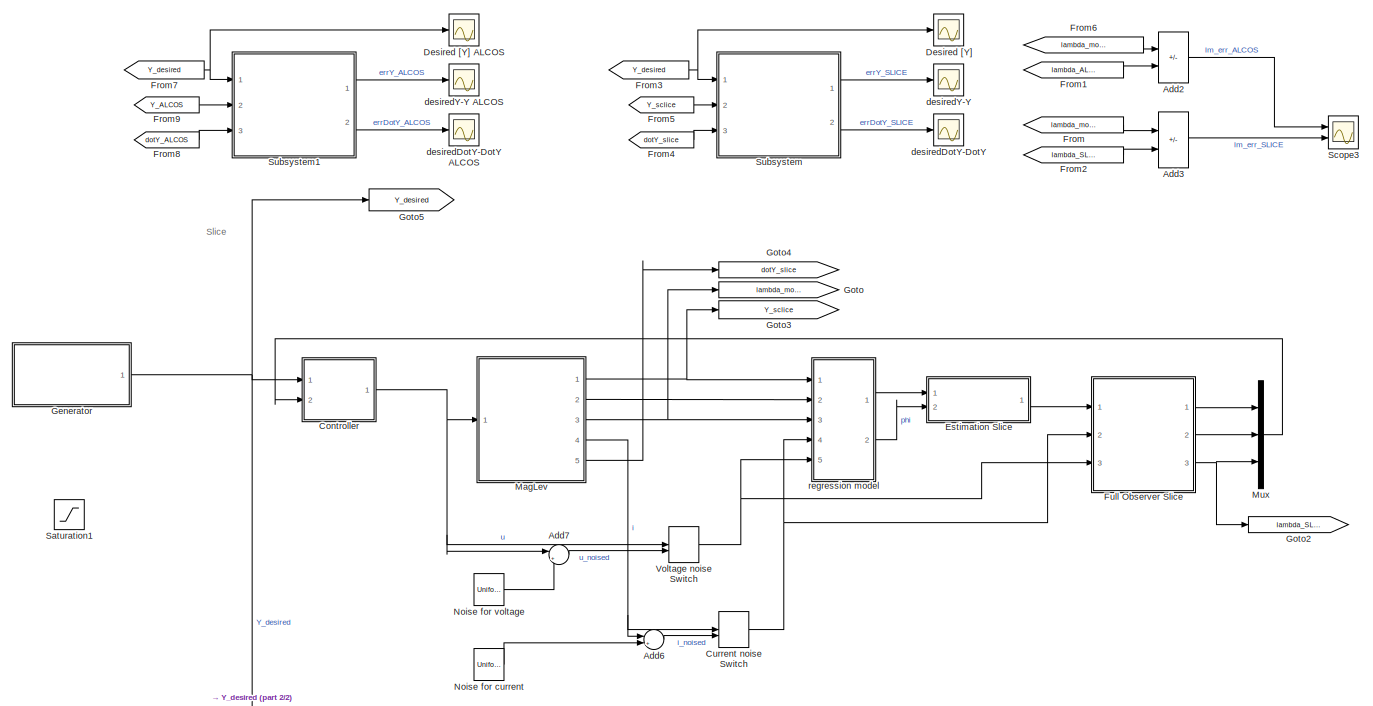
[diagram: root canvas - part 1/2, full width, top band]
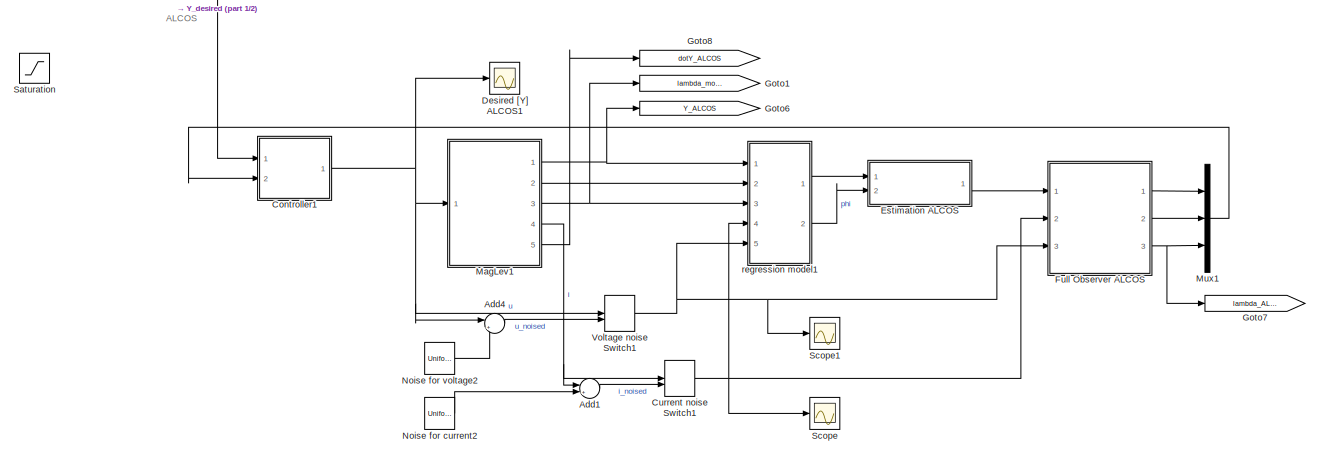
[diagram: root canvas - part 2/2, full width, bottom band]
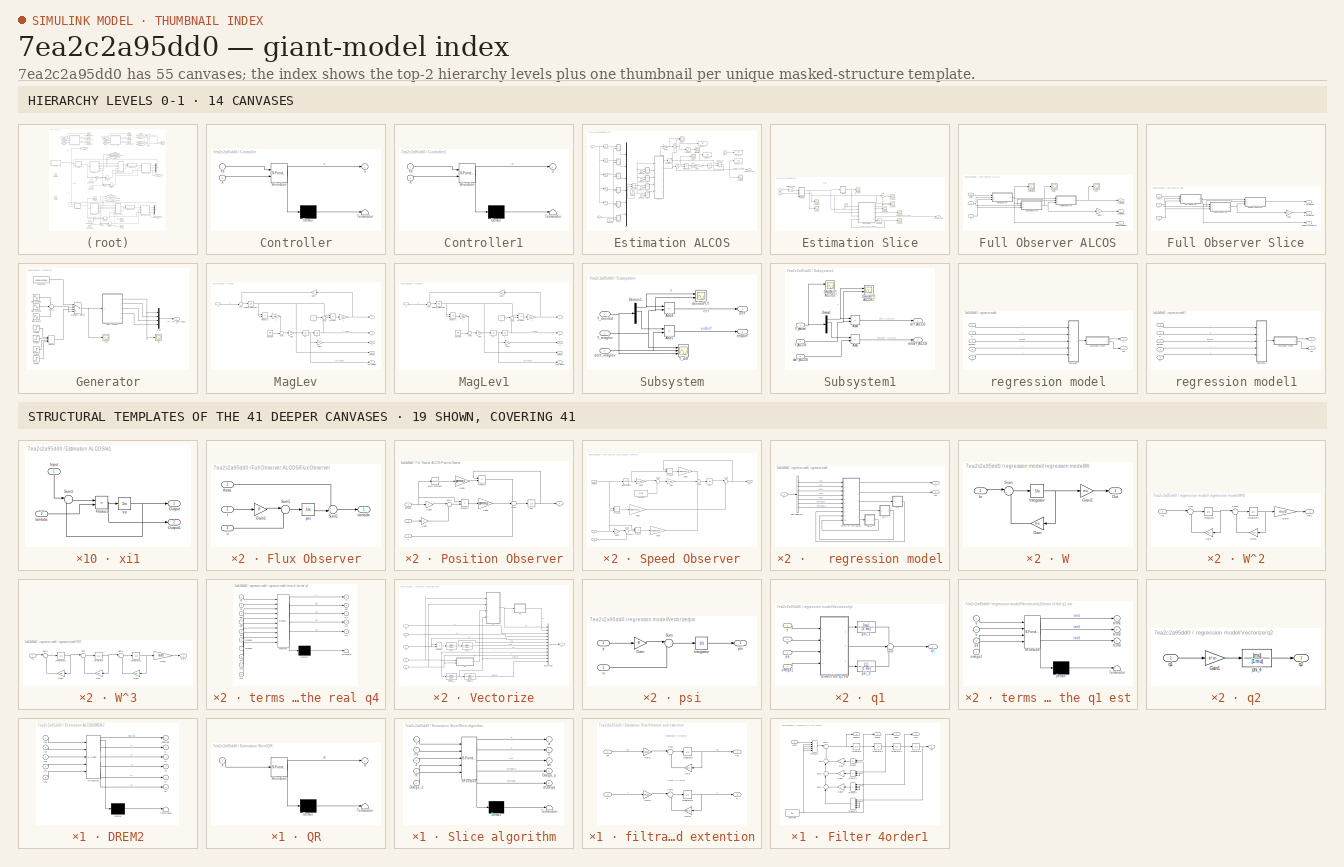
[diagram: thumbnail index - top-2 hierarchy levels (14 canvases) + 19 structural-template representatives of the remaining 41 canvases]
MODEL slx_7ea2c2a95dd0
KIND model
CONFIG AbsTol = auto
CONFIG EnableMultiTasking = off
CONFIG FixedStep = 1e-5
CONFIG MaxStep = auto
CONFIG MinStep = auto
CONFIG RelTol = 1e-8
CONFIG SampleTimeConstraint = Unconstrained
CONFIG SolverName = ode45
CONFIG StartTime = 0.0
CONFIG StopTime = 40
BLOCK [Sum] Add1
  Inputs = |++
  Ports = [2, 1]
BLOCK [Sum] Add2
  IconShape = rectangular
  Inputs = +-
  Ports = [2, 1]
BLOCK [Sum] Add3
  IconShape = rectangular
  Inputs = +-
  Ports = [2, 1]
BLOCK [Sum] Add4
  Inputs = |++
  Ports = [2, 1]
BLOCK [Sum] Add6
  Inputs = |++
  Ports = [2, 1]
BLOCK [Sum] Add7
  Inputs = |++
  Ports = [2, 1]
BLOCK [SubSystem] Controller
  ErrorFcn = Stateflow.Translate.translate
  PermitHierarchicalResolution = ExplicitOnly
  Ports = [2, 1]
  RequestExecContextInheritance = off
  SFBlockType = MATLAB Function
  TreatAsAtomicUnit = on
BLOCK [Demux] Controller/ Demux 
  Outputs = 1
  Ports = [1, 1]
BLOCK [S-Function] Controller/ SFunction 
  EnableBusSupport = on
  FunctionName = sf_sfun
  Parameters = R,c,g,k,k0,k1,k2,m
  PortCounts = [2 2]
  Ports = [2, 2]
  SFcnIsStateOwnerBlock = off
  SFunctionDeploymentMode = off
  Tag = Stateflow S-Function 1
BLOCK [Terminator] Controller/ Terminator 
BLOCK [Inport] Controller/X
  Port = 2
BLOCK [Inport] Controller/Yd
BLOCK [Outport] Controller/u
  VectorParamsAs1DForOutWhenUnconnected = off
BLOCK [SubSystem] Controller1
  ErrorFcn = Stateflow.Translate.translate
  PermitHierarchicalResolution = ExplicitOnly
  Ports = [2, 1]
  RequestExecContextInheritance = off
  SFBlockType = MATLAB Function
  TreatAsAtomicUnit = on
BLOCK [Demux] Controller1/ Demux 
  Outputs = 1
  Ports = [1, 1]
BLOCK [S-Function] Controller1/ SFunction 
  EnableBusSupport = on
  FunctionName = sf_sfun
  Parameters = R,c,g,k,k0,k1,k2,m
  PortCounts = [2 2]
  Ports = [2, 2]
  SFcnIsStateOwnerBlock = off
  SFunctionDeploymentMode = off
  Tag = Stateflow S-Function 2
BLOCK [Terminator] Controller1/ Terminator 
BLOCK [Inport] Controller1/X
  Port = 2
BLOCK [Inport] Controller1/Yd
BLOCK [Outport] Controller1/u
  VectorParamsAs1DForOutWhenUnconnected = off
BLOCK [ManualSwitch] Current noise Switch
  CurrentSetting = 0
  NameLocation = top
BLOCK [ManualSwitch] Current noise Switch1
  CurrentSetting = 0
  NameLocation = top
BLOCK [Scope] Desired [Y]
  Floating = off
  NumInputPorts = 1
  Ports = [1]
  ScopeSpecificationString = Simulink.scopes.TimeScopeBlockCfg('CurrentConfiguration', extmgr.ConfigurationSet(extmgr.Configuration('Core','General UI',true),extmgr.Configuration('Core','Source UI',true),extmgr.Configuration('Sources','WiredSimulink',true,'DataLoggingVariableName','ScopeData6'),extmgr.Configuration('Visuals','Time Domain',true,'SerializedDisplays',{struct('MinYLimReal','-0.96865','MaxYLimReal','3.44096','YLab...<+1566ch>
BLOCK [Scope] Desired [Y] ALCOS
  Floating = off
  NumInputPorts = 1
  Ports = [1]
  ScopeSpecificationString = Simulink.scopes.TimeScopeBlockCfg('CurrentConfiguration', extmgr.ConfigurationSet(extmgr.Configuration('Core','General UI',true),extmgr.Configuration('Core','Source UI',true),extmgr.Configuration('Sources','WiredSimulink',true,'DataLoggingVariableName','ScopeData2'),extmgr.Configuration('Visuals','Time Domain',true,'SerializedDisplays',{struct('MinYLimReal','-0.96865','MaxYLimReal','3.44096','YLab...<+2004ch>
BLOCK [Scope] Desired [Y] ALCOS1
  Floating = off
  NumInputPorts = 1
  Ports = [1]
  ScopeSpecificationString = Simulink.scopes.TimeScopeBlockCfg('CurrentConfiguration', extmgr.ConfigurationSet(extmgr.Configuration('Core','General UI',true),extmgr.Configuration('Core','Source UI',true),extmgr.Configuration('Sources','WiredSimulink',true,'DataLoggingVariableName','ScopeData1'),extmgr.Configuration('Visuals','Time Domain',true,'SerializedDisplays',{struct('MinYLimReal','-31059.45774','MaxYLimReal','279438.964...<+1745ch>
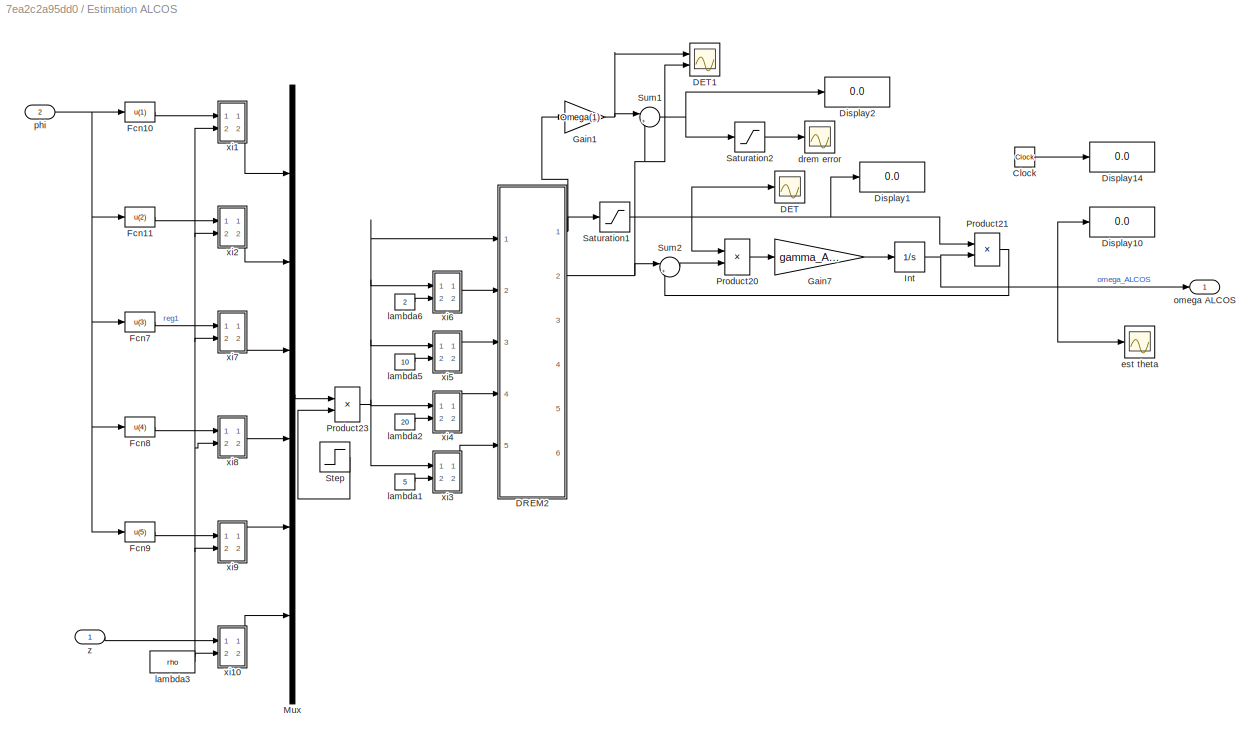
BLOCK [SubSystem] Estimation ALCOS
  Ports = [2, 1]
  RequestExecContextInheritance = off
BLOCK [Clock] Estimation ALCOS/Clock
BLOCK [Scope] Estimation ALCOS/DET
  Floating = off
  NumInputPorts = 1
  Ports = [1]
  ScopeSpecificationString = Simulink.scopes.TimeScopeBlockCfg('CurrentConfiguration', extmgr.ConfigurationSet(extmgr.Configuration('Core','General UI',true),extmgr.Configuration('Core','Source UI',true),extmgr.Configuration('Sources','WiredSimulink',true,'DataLoggingVariableName','ScopeData1','DataLoggingSaveFormat','StructureWithTime','DataLoggingDecimation','1','DataLoggingDecimateData',true),extmgr.Configuration('Visuals'...<+1769ch>
BLOCK [Scope] Estimation ALCOS/DET1
  Floating = off
  NumInputPorts = 2
  Ports = [2]
  ScopeSpecificationString = Simulink.scopes.TimeScopeBlockCfg('CurrentConfiguration', extmgr.ConfigurationSet(extmgr.Configuration('Core','General UI',true),extmgr.Configuration('Core','Source UI',true),extmgr.Configuration('Sources','WiredSimulink',true,'DataLoggingVariableName','ScopeData2','DataLoggingSaveFormat','StructureWithTime','DataLoggingDecimation','1','DataLoggingDecimateData',true),extmgr.Configuration('Visuals'...<+1764ch>
BLOCK [SubSystem] Estimation ALCOS/DREM2
  ErrorFcn = Stateflow.Translate.translate
  PermitHierarchicalResolution = ExplicitOnly
  Ports = [5, 6]
  RequestExecContextInheritance = off
  SFBlockType = MATLAB Function
  TreatAsAtomicUnit = on
BLOCK [Demux] Estimation ALCOS/DREM2/ Demux 
  Outputs = 1
  Ports = [1, 1]
BLOCK [S-Function] Estimation ALCOS/DREM2/ SFunction 
  EnableBusSupport = on
  FunctionName = sf_sfun
  PortCounts = [5 7]
  Ports = [5, 7]
  SFcnIsStateOwnerBlock = off
  SFunctionDeploymentMode = off
  Tag = Stateflow S-Function 5
BLOCK [Terminator] Estimation ALCOS/DREM2/ Terminator 
BLOCK [Inport] Estimation ALCOS/DREM2/in1
BLOCK [Inport] Estimation ALCOS/DREM2/in2
  Port = 2
BLOCK [Inport] Estimation ALCOS/DREM2/in3
  Port = 3
BLOCK [Inport] Estimation ALCOS/DREM2/in4
  Port = 4
BLOCK [Inport] Estimation ALCOS/DREM2/in5
  Port = 5
BLOCK [Outport] Estimation ALCOS/DREM2/newreg
  VectorParamsAs1DForOutWhenUnconnected = off
BLOCK [Outport] Estimation ALCOS/DREM2/y1
  Port = 2
  VectorParamsAs1DForOutWhenUnconnected = off
BLOCK [Outport] Estimation ALCOS/DREM2/y2
  Port = 3
  VectorParamsAs1DForOutWhenUnconnected = off
BLOCK [Outport] Estimation ALCOS/DREM2/y3
  Port = 4
  VectorParamsAs1DForOutWhenUnconnected = off
BLOCK [Outport] Estimation ALCOS/DREM2/y4
  Port = 5
  VectorParamsAs1DForOutWhenUnconnected = off
BLOCK [Outport] Estimation ALCOS/DREM2/y5
  Port = 6
  VectorParamsAs1DForOutWhenUnconnected = off
BLOCK [Display] Estimation ALCOS/Display1
  Decimation = 1
  Ports = [1]
BLOCK [Display] Estimation ALCOS/Display10
  Decimation = 1
  Ports = [1]
BLOCK [Display] Estimation ALCOS/Display14
  Decimation = 1
  Ports = [1]
BLOCK [Display] Estimation ALCOS/Display2
  Decimation = 1
  Ports = [1]
BLOCK [Fcn] Estimation ALCOS/Fcn10
  Expr = u(1)
BLOCK [Fcn] Estimation ALCOS/Fcn11
  Expr = u(2)
BLOCK [Fcn] Estimation ALCOS/Fcn7
  Expr = u(3)
BLOCK [Fcn] Estimation ALCOS/Fcn8
  Expr = u(4)
BLOCK [Fcn] Estimation ALCOS/Fcn9
  Expr = u(5)
BLOCK [Gain] Estimation ALCOS/Gain1
  Gain = Omega(1)
BLOCK [Gain] Estimation ALCOS/Gain7
  Gain = gamma_ALCOS
BLOCK [Integrator] Estimation ALCOS/Int
  InitialCondition = hat_eta_0
  Ports = [1, 1]
BLOCK [Mux] Estimation ALCOS/Mux
  DisplayOption = bar
  Inputs = 6
  Ports = [6, 1]
BLOCK [Product] Estimation ALCOS/Product20
  Ports = [2, 1]
  RndMeth = Zero
BLOCK [Product] Estimation ALCOS/Product21
  Ports = [2, 1]
  RndMeth = Zero
BLOCK [Product] Estimation ALCOS/Product23
  Ports = [2, 1]
  RndMeth = Zero
BLOCK [Saturate] Estimation ALCOS/Saturation1
  Commented = through
  LowerLimit = -1000
  UpperLimit = 1000
BLOCK [Saturate] Estimation ALCOS/Saturation2
  LowerLimit = -1000
  UpperLimit = 1000
BLOCK [Step] Estimation ALCOS/Step
  After = alpha
  SampleTime = 0
  Time = 0
BLOCK [Sum] Estimation ALCOS/Sum1
  Inputs = |+-
  Ports = [2, 1]
BLOCK [Sum] Estimation ALCOS/Sum2
  Inputs = |+-
  Ports = [2, 1]
BLOCK [Scope] Estimation ALCOS/drem error
  Floating = off
  NumInputPorts = 1
  Ports = [1]
  ScopeSpecificationString = Simulink.scopes.TimeScopeBlockCfg('CurrentConfiguration', extmgr.ConfigurationSet(extmgr.Configuration('Core','General UI',true),extmgr.Configuration('Core','Source UI',true),extmgr.Configuration('Sources','WiredSimulink',true,'DataLoggingVariableName','ScopeData1','DataLoggingSaveFormat','StructureWithTime','DataLoggingDecimation','1','DataLoggingDecimateData',true),extmgr.Configuration('Visuals'...<+1763ch>
BLOCK [Scope] Estimation ALCOS/est theta
  Floating = off
  NumInputPorts = 1
  Ports = [1]
  ScopeSpecificationString = Simulink.scopes.TimeScopeBlockCfg('CurrentConfiguration', extmgr.ConfigurationSet(extmgr.Configuration('Core','General UI',true,'FigureColor',[1 1 1]),extmgr.Configuration('Core','Source UI',true),extmgr.Configuration('Sources','WiredSimulink',true,'DataLoggingVariableName','data_est_theta','DataLogging',true,'DataLoggingSaveFormat','StructureWithTime'),extmgr.Configuration('Visuals','Time Domain'...<+1968ch>
BLOCK [Constant] Estimation ALCOS/lambda1
  Value = 5
BLOCK [Constant] Estimation ALCOS/lambda2
  Value = 20
BLOCK [Constant] Estimation ALCOS/lambda3
  Value = rho
BLOCK [Constant] Estimation ALCOS/lambda5
  Value = 10
BLOCK [Constant] Estimation ALCOS/lambda6
  Value = 2
BLOCK [Outport] Estimation ALCOS/omega ALCOS
  VectorParamsAs1DForOutWhenUnconnected = off
BLOCK [Inport] Estimation ALCOS/phi
  Port = 2
BLOCK [SubSystem] Estimation ALCOS/xi1
  Ports = [2, 2]
  RequestExecContextInheritance = off
BLOCK [Inport] Estimation ALCOS/xi1/Input
  NameLocation = left
BLOCK [Integrator] Estimation ALCOS/xi1/Int
  Ports = [1, 1]
BLOCK [Outport] Estimation ALCOS/xi1/Output
  VectorParamsAs1DForOutWhenUnconnected = off
BLOCK [Outport] Estimation ALCOS/xi1/Output1
  Port = 2
  VectorParamsAs1DForOutWhenUnconnected = off
BLOCK [Product] Estimation ALCOS/xi1/Product
  Ports = [2, 1]
  RndMeth = Zero
BLOCK [Sum] Estimation ALCOS/xi1/Sum1
  Inputs = |+-
  Ports = [2, 1]
BLOCK [Inport] Estimation ALCOS/xi1/lambda
  Port = 2
BLOCK [SubSystem] Estimation ALCOS/xi10
  Ports = [2, 2]
  RequestExecContextInheritance = off
BLOCK [Inport] Estimation ALCOS/xi10/Input
  NameLocation = left
BLOCK [Integrator] Estimation ALCOS/xi10/Int
  Ports = [1, 1]
BLOCK [Outport] Estimation ALCOS/xi10/Output
  VectorParamsAs1DForOutWhenUnconnected = off
BLOCK [Outport] Estimation ALCOS/xi10/Output1
  Port = 2
  VectorParamsAs1DForOutWhenUnconnected = off
BLOCK [Product] Estimation ALCOS/xi10/Product
  Ports = [2, 1]
  RndMeth = Zero
BLOCK [Sum] Estimation ALCOS/xi10/Sum1
  Inputs = |+-
  Ports = [2, 1]
BLOCK [Inport] Estimation ALCOS/xi10/lambda
  Port = 2
BLOCK [SubSystem] Estimation ALCOS/xi2
  Ports = [2, 2]
  RequestExecContextInheritance = off
BLOCK [Inport] Estimation ALCOS/xi2/Input
  NameLocation = left
BLOCK [Integrator] Estimation ALCOS/xi2/Int
  Ports = [1, 1]
BLOCK [Outport] Estimation ALCOS/xi2/Output
  VectorParamsAs1DForOutWhenUnconnected = off
BLOCK [Outport] Estimation ALCOS/xi2/Output1
  Port = 2
  VectorParamsAs1DForOutWhenUnconnected = off
BLOCK [Product] Estimation ALCOS/xi2/Product
  Ports = [2, 1]
  RndMeth = Zero
BLOCK [Sum] Estimation ALCOS/xi2/Sum1
  Inputs = |+-
  Ports = [2, 1]
BLOCK [Inport] Estimation ALCOS/xi2/lambda
  Port = 2
BLOCK [SubSystem] Estimation ALCOS/xi3
  Ports = [2, 2]
  RequestExecContextInheritance = off
BLOCK [Inport] Estimation ALCOS/xi3/Input
  NameLocation = left
BLOCK [Integrator] Estimation ALCOS/xi3/Int
  Ports = [1, 1]
BLOCK [Outport] Estimation ALCOS/xi3/Output
  VectorParamsAs1DForOutWhenUnconnected = off
BLOCK [Outport] Estimation ALCOS/xi3/Output1
  Port = 2
  VectorParamsAs1DForOutWhenUnconnected = off
BLOCK [Product] Estimation ALCOS/xi3/Product
  Ports = [2, 1]
  RndMeth = Zero
BLOCK [Sum] Estimation ALCOS/xi3/Sum1
  Inputs = |+-
  Ports = [2, 1]
BLOCK [Inport] Estimation ALCOS/xi3/lambda
  Port = 2
BLOCK [SubSystem] Estimation ALCOS/xi4
  Ports = [2, 2]
  RequestExecContextInheritance = off
BLOCK [Inport] Estimation ALCOS/xi4/Input
  NameLocation = left
BLOCK [Integrator] Estimation ALCOS/xi4/Int
  Ports = [1, 1]
BLOCK [Outport] Estimation ALCOS/xi4/Output
  VectorParamsAs1DForOutWhenUnconnected = off
BLOCK [Outport] Estimation ALCOS/xi4/Output1
  Port = 2
  VectorParamsAs1DForOutWhenUnconnected = off
BLOCK [Product] Estimation ALCOS/xi4/Product
  Ports = [2, 1]
  RndMeth = Zero
BLOCK [Sum] Estimation ALCOS/xi4/Sum1
  Inputs = |+-
  Ports = [2, 1]
BLOCK [Inport] Estimation ALCOS/xi4/lambda
  Port = 2
BLOCK [SubSystem] Estimation ALCOS/xi5
  Ports = [2, 2]
  RequestExecContextInheritance = off
BLOCK [Inport] Estimation ALCOS/xi5/Input
  NameLocation = left
BLOCK [Integrator] Estimation ALCOS/xi5/Int
  Ports = [1, 1]
BLOCK [Outport] Estimation ALCOS/xi5/Output
  VectorParamsAs1DForOutWhenUnconnected = off
BLOCK [Outport] Estimation ALCOS/xi5/Output1
  Port = 2
  VectorParamsAs1DForOutWhenUnconnected = off
BLOCK [Product] Estimation ALCOS/xi5/Product
  Ports = [2, 1]
  RndMeth = Zero
BLOCK [Sum] Estimation ALCOS/xi5/Sum1
  Inputs = |+-
  Ports = [2, 1]
BLOCK [Inport] Estimation ALCOS/xi5/lambda
  Port = 2
BLOCK [SubSystem] Estimation ALCOS/xi6
  Ports = [2, 2]
  RequestExecContextInheritance = off
BLOCK [Inport] Estimation ALCOS/xi6/Input
  NameLocation = left
BLOCK [Integrator] Estimation ALCOS/xi6/Int
  Ports = [1, 1]
BLOCK [Outport] Estimation ALCOS/xi6/Output
  VectorParamsAs1DForOutWhenUnconnected = off
BLOCK [Outport] Estimation ALCOS/xi6/Output1
  Port = 2
  VectorParamsAs1DForOutWhenUnconnected = off
BLOCK [Product] Estimation ALCOS/xi6/Product
  Ports = [2, 1]
  RndMeth = Zero
BLOCK [Sum] Estimation ALCOS/xi6/Sum1
  Inputs = |+-
  Ports = [2, 1]
BLOCK [Inport] Estimation ALCOS/xi6/lambda
  Port = 2
BLOCK [SubSystem] Estimation ALCOS/xi7
  Ports = [2, 2]
  RequestExecContextInheritance = off
BLOCK [Inport] Estimation ALCOS/xi7/Input
  NameLocation = left
BLOCK [Integrator] Estimation ALCOS/xi7/Int
  Ports = [1, 1]
BLOCK [Outport] Estimation ALCOS/xi7/Output
  VectorParamsAs1DForOutWhenUnconnected = off
BLOCK [Outport] Estimation ALCOS/xi7/Output1
  Port = 2
  VectorParamsAs1DForOutWhenUnconnected = off
BLOCK [Product] Estimation ALCOS/xi7/Product
  Ports = [2, 1]
  RndMeth = Zero
BLOCK [Sum] Estimation ALCOS/xi7/Sum1
  Inputs = |+-
  Ports = [2, 1]
BLOCK [Inport] Estimation ALCOS/xi7/lambda
  Port = 2
BLOCK [SubSystem] Estimation ALCOS/xi8
  Ports = [2, 2]
  RequestExecContextInheritance = off
BLOCK [Inport] Estimation ALCOS/xi8/Input
  NameLocation = left
BLOCK [Integrator] Estimation ALCOS/xi8/Int
  Ports = [1, 1]
BLOCK [Outport] Estimation ALCOS/xi8/Output
  VectorParamsAs1DForOutWhenUnconnected = off
BLOCK [Outport] Estimation ALCOS/xi8/Output1
  Port = 2
  VectorParamsAs1DForOutWhenUnconnected = off
BLOCK [Product] Estimation ALCOS/xi8/Product
  Ports = [2, 1]
  RndMeth = Zero
BLOCK [Sum] Estimation ALCOS/xi8/Sum1
  Inputs = |+-
  Ports = [2, 1]
BLOCK [Inport] Estimation ALCOS/xi8/lambda
  Port = 2
BLOCK [SubSystem] Estimation ALCOS/xi9
  Ports = [2, 2]
  RequestExecContextInheritance = off
BLOCK [Inport] Estimation ALCOS/xi9/Input
  NameLocation = left
BLOCK [Integrator] Estimation ALCOS/xi9/Int
  Ports = [1, 1]
BLOCK [Outport] Estimation ALCOS/xi9/Output
  VectorParamsAs1DForOutWhenUnconnected = off
BLOCK [Outport] Estimation ALCOS/xi9/Output1
  Port = 2
  VectorParamsAs1DForOutWhenUnconnected = off
BLOCK [Product] Estimation ALCOS/xi9/Product
  Ports = [2, 1]
  RndMeth = Zero
BLOCK [Sum] Estimation ALCOS/xi9/Sum1
  Inputs = |+-
  Ports = [2, 1]
BLOCK [Inport] Estimation ALCOS/xi9/lambda
  Port = 2
BLOCK [Inport] Estimation ALCOS/z
BLOCK [SubSystem] Estimation Slice
  Ports = [2, 1]
  RequestExecContextInheritance = off
BLOCK [Clock] Estimation Slice/Clock
BLOCK [Integrator] Estimation Slice/Integrator1
  InitialCondition = hat_eta_0
  Ports = [1, 1]
BLOCK [Math] Estimation Slice/Math Function
  Operator = transpose
  Ports = [1, 1]
  SignedPower = on
BLOCK [SubSystem] Estimation Slice/QR
  ErrorFcn = Stateflow.Translate.translate
  PermitHierarchicalResolution = ExplicitOnly
  Ports = [1, 1]
  RequestExecContextInheritance = off
  SFBlockType = MATLAB Function
  TreatAsAtomicUnit = on
BLOCK [Demux] Estimation Slice/QR/ Demux 
  Outputs = 1
  Ports = [1, 1]
BLOCK [S-Function] Estimation Slice/QR/ SFunction 
  EnableBusSupport = on
  FunctionName = sf_sfun
  PortCounts = [1 2]
  Ports = [1, 2]
  SFcnIsStateOwnerBlock = off
  SFunctionDeploymentMode = off
  Tag = Stateflow S-Function 8
BLOCK [Terminator] Estimation Slice/QR/ Terminator 
BLOCK [Outport] Estimation Slice/QR/R
  VectorParamsAs1DForOutWhenUnconnected = off
BLOCK [Inport] Estimation Slice/QR/X
BLOCK [Scope] Estimation Slice/Scope
  Floating = off
  NumInputPorts = 1
  Ports = [1]
  ScopeSpecificationString = Simulink.scopes.TimeScopeBlockCfg('CurrentConfiguration', extmgr.ConfigurationSet(extmgr.Configuration('Core','General UI',true),extmgr.Configuration('Core','Source UI',true),extmgr.Configuration('Sources','WiredSimulink',true,'DataLoggingVariableName','ScopeData8'),extmgr.Configuration('Visuals','Time Domain',true,'SerializedDisplays',{struct('MinYLimReal','-10.192','MaxYLimReal','43.13846','YLab...<+1631ch>
BLOCK [Scope] Estimation Slice/Scope1
  Floating = off
  NumInputPorts = 1
  Ports = [1]
  ScopeSpecificationString = Simulink.scopes.TimeScopeBlockCfg('CurrentConfiguration', extmgr.ConfigurationSet(extmgr.Configuration('Core','General UI',true),extmgr.Configuration('Core','Source UI',true),extmgr.Configuration('Sources','WiredSimulink',true,'DataLoggingVariableName','ScopeData9'),extmgr.Configuration('Visuals','Time Domain',true,'SerializedDisplays',{struct('MinYLimReal','-0.198','MaxYLimReal','0.08147','YLabel...<+1384ch>
BLOCK [Scope] Estimation Slice/Scope11
  Floating = off
  NumInputPorts = 1
  Ports = [1]
  ScopeSpecificationString = Simulink.scopes.TimeScopeBlockCfg('CurrentConfiguration', extmgr.ConfigurationSet(extmgr.Configuration('Core','General UI',true,'FigureColor',[0 0 0]),extmgr.Configuration('Core','Source UI',true),extmgr.Configuration('Sources','WiredSimulink',true,'DataLoggingVariableName','ScopeData19'),extmgr.Configuration('Visuals','Time Domain',true,'SerializedDisplays',{struct('MinYLimReal','-12.28949','MaxY...<+2894ch>
BLOCK [Scope] Estimation Slice/Scope4
  Floating = off
  NumInputPorts = 2
  Ports = [2]
  ScopeSpecificationString = Simulink.scopes.TimeScopeBlockCfg('CurrentConfiguration', extmgr.ConfigurationSet(extmgr.Configuration('Core','General UI',true),extmgr.Configuration('Core','Source UI',true),extmgr.Configuration('Sources','WiredSimulink',true,'DataLoggingVariableName','ScopeData12'),extmgr.Configuration('Visuals','Time Domain',true,'SerializedDisplays',{struct('MinYLimReal','-0.24325','MaxYLimReal','0.3045','YLab...<+1757ch>
BLOCK [Scope] Estimation Slice/Scope5
  Floating = off
  NumInputPorts = 1
  Ports = [1]
  ScopeSpecificationString = Simulink.scopes.TimeScopeBlockCfg('CurrentConfiguration', extmgr.ConfigurationSet(extmgr.Configuration('Core','General UI',true),extmgr.Configuration('Core','Source UI',true),extmgr.Configuration('Sources','WiredSimulink',true,'DataLoggingVariableName','ScopeData13'),extmgr.Configuration('Visuals','Time Domain',true,'SerializedDisplays',{struct('MinYLimReal','-0.65623','MaxYLimReal','0.50367','YLa...<+1603ch>
BLOCK [Scope] Estimation Slice/Scope7
  Floating = off
  NumInputPorts = 1
  Ports = [1]
  ScopeSpecificationString = Simulink.scopes.TimeScopeBlockCfg('CurrentConfiguration', extmgr.ConfigurationSet(extmgr.Configuration('Core','General UI',true),extmgr.Configuration('Core','Source UI',true),extmgr.Configuration('Sources','WiredSimulink',true,'DataLoggingVariableName','ScopeData15'),extmgr.Configuration('Visuals','Time Domain',true,'SerializedDisplays',{struct('MinYLimReal','-0.00379','MaxYLimReal','0.00117','YLa...<+1699ch>
BLOCK [Scope] Estimation Slice/Scope8
  Floating = off
  NumInputPorts = 1
  Ports = [1]
  ScopeSpecificationString = Simulink.scopes.TimeScopeBlockCfg('CurrentConfiguration', extmgr.ConfigurationSet(extmgr.Configuration('Core','General UI',true,'FigureColor',[1 1 1]),extmgr.Configuration('Core','Source UI',true),extmgr.Configuration('Sources','WiredSimulink',true,'DataLoggingVariableName','ScopeData16'),extmgr.Configuration('Visuals','Time Domain',true,'SerializedDisplays',{struct('MinYLimReal','-0.625','MaxYLim...<+1544ch>
BLOCK [Scope] Estimation Slice/Scope9
  Floating = off
  NumInputPorts = 1
  Ports = [1]
  ScopeSpecificationString = Simulink.scopes.TimeScopeBlockCfg('CurrentConfiguration', extmgr.ConfigurationSet(extmgr.Configuration('Core','General UI',true),extmgr.Configuration('Core','Source UI',true),extmgr.Configuration('Sources','WiredSimulink',true,'DataLoggingVariableName','ScopeData1'),extmgr.Configuration('Visuals','Time Domain',true,'SerializedDisplays',{struct('MinYLimReal','-0.03752','MaxYLimReal','0.03869','YLab...<+1512ch>
BLOCK [SubSystem] Estimation Slice/Slice algorithm
  ErrorFcn = Stateflow.Translate.translate
  PermitHierarchicalResolution = ExplicitOnly
  Ports = [5, 5]
  RequestExecContextInheritance = off
  SFBlockType = MATLAB Function
  TreatAsAtomicUnit = on
BLOCK [Demux] Estimation Slice/Slice algorithm/ Demux 
  Outputs = 1
  Ports = [1, 1]
BLOCK [S-Function] Estimation Slice/Slice algorithm/ SFunction 
  EnableBusSupport = on
  FunctionName = sf_sfun
  Parameters = Omega,epsilon,gamma_SLICE
  PortCounts = [5 6]
  Ports = [5, 6]
  SFcnIsStateOwnerBlock = off
  SFunctionDeploymentMode = off
  Tag = Stateflow S-Function 7
BLOCK [Terminator] Estimation Slice/Slice algorithm/ Terminator 
BLOCK [Inport] Estimation Slice/Slice algorithm/Omega_e
  Port = 5
BLOCK [Outport] Estimation Slice/Slice algorithm/Omega_p
  Port = 4
  VectorParamsAs1DForOutWhenUnconnected = off
BLOCK [Inport] Estimation Slice/Slice algorithm/Psi
  Port = 2
BLOCK [Inport] Estimation Slice/Slice algorithm/R
  Port = 4
BLOCK [Inport] Estimation Slice/Slice algorithm/Z
  Port = 3
BLOCK [Outport] Estimation Slice/Slice algorithm/dOmega
  Port = 5
  VectorParamsAs1DForOutWhenUnconnected = off
BLOCK [Outport] Estimation Slice/Slice algorithm/kth
  Port = 3
  VectorParamsAs1DForOutWhenUnconnected = off
BLOCK [Outport] Estimation Slice/Slice algorithm/n
  Port = 2
  VectorParamsAs1DForOutWhenUnconnected = off
BLOCK [Inport] Estimation Slice/Slice algorithm/t
BLOCK [Outport] Estimation Slice/Slice algorithm/zt
  VectorParamsAs1DForOutWhenUnconnected = off
BLOCK [Sum] Estimation Slice/Sum
  Inputs = |+-
  Ports = [2, 1]
BLOCK [SubSystem] Estimation Slice/filtration and extention
  Ports = [2, 2]
  RequestExecContextInheritance = off
BLOCK [Gain] Estimation Slice/filtration and extention/Gain
  Gain = diag(v)
  Multiplication = Matrix(K*u)
BLOCK [Gain] Estimation Slice/filtration and extention/Gain1
  Gain = kappa
  Multiplication = Matrix(K*u)
BLOCK [Gain] Estimation Slice/filtration and extention/Gain2
  Gain = kappa
  Multiplication = Matrix(K*u)
BLOCK [Gain] Estimation Slice/filtration and extention/Gain3
  Gain = diag(v)
  Multiplication = Matrix(K*u)
BLOCK [Integrator] Estimation Slice/filtration and extention/Integrator
  Ports = [1, 1]
BLOCK [Integrator] Estimation Slice/filtration and extention/Integrator1
  Ports = [1, 1]
BLOCK [Outport] Estimation Slice/filtration and extention/Psi
  VectorParamsAs1DForOutWhenUnconnected = off
BLOCK [Sum] Estimation Slice/filtration and extention/Sum
  Inputs = |+-
  Ports = [2, 1]
BLOCK [Sum] Estimation Slice/filtration and extention/Sum1
  Inputs = |+-
  Ports = [2, 1]
BLOCK [Outport] Estimation Slice/filtration and extention/Z
  Port = 2
  VectorParamsAs1DForOutWhenUnconnected = off
BLOCK [Inport] Estimation Slice/filtration and extention/phi
BLOCK [Inport] Estimation Slice/filtration and extention/z
  Port = 2
BLOCK [Outport] Estimation Slice/omega_slice
  VectorParamsAs1DForOutWhenUnconnected = off
BLOCK [Inport] Estimation Slice/phi
  Port = 2
BLOCK [Inport] Estimation Slice/z
BLOCK [From] From
  GotoTag = lambda_model_slice
BLOCK [From] From1
  GotoTag = lambda_ALCOS
BLOCK [From] From2
  GotoTag = lambda_SLICE
BLOCK [From] From3
  GotoTag = Y_desired
BLOCK [From] From4
  GotoTag = dotY_slice
BLOCK [From] From5
  GotoTag = Y_sclice
BLOCK [From] From6
  GotoTag = lambda_model_ALCOS
BLOCK [From] From7
  GotoTag = Y_desired
BLOCK [From] From8
  GotoTag = dotY_ALCOS
BLOCK [From] From9
  GotoTag = Y_ALCOS
BLOCK [SubSystem] Full Observer ALCOS
  Ports = [3, 3]
  RequestExecContextInheritance = off
BLOCK [SubSystem] Full Observer ALCOS/Flux Observer
  Ports = [3, 1]
  RequestExecContextInheritance = off
BLOCK [Gain] Full Observer ALCOS/Flux Observer/Gain1
  Gain = R
BLOCK [Inport] Full Observer ALCOS/Flux Observer/I
  Port = 2
BLOCK [Sum] Full Observer ALCOS/Flux Observer/Sum1
  Inputs = |-+
  Ports = [2, 1]
BLOCK [Sum] Full Observer ALCOS/Flux Observer/Sum5
  Inputs = ++|
  Ports = [2, 1]
BLOCK [Outport] Full Observer ALCOS/Flux Observer/lambda 
  VectorParamsAs1DForOutWhenUnconnected = off
BLOCK [Integrator] Full Observer ALCOS/Flux Observer/psi
  Ports = [1, 1]
BLOCK [Inport] Full Observer ALCOS/Flux Observer/theta
BLOCK [Inport] Full Observer ALCOS/Flux Observer/u
  Port = 3
BLOCK [Gain] Full Observer ALCOS/Gain1
  Gain = m
BLOCK [SubSystem] Full Observer ALCOS/Position Observer
  Ports = [3, 1]
  RequestExecContextInheritance = off
BLOCK [Gain] Full Observer ALCOS/Position Observer/Gain3
  Gain = c
BLOCK [Gain] Full Observer ALCOS/Position Observer/Gain7
  Gain = k
BLOCK [Gain] Full Observer ALCOS/Position Observer/Gain8
  Gain = gamma_y
BLOCK [Gain] Full Observer ALCOS/Position Observer/Gain9
  Gain = gamma_y
BLOCK [Inport] Full Observer ALCOS/Position Observer/I
  Port = 2
BLOCK [Math] Full Observer ALCOS/Position Observer/Math Function1
  Operator = square
  Ports = [1, 1]
  SignedPower = on
BLOCK [Product] Full Observer ALCOS/Position Observer/Product3
  Ports = [2, 1]
BLOCK [Product] Full Observer ALCOS/Position Observer/Product4
  Ports = [2, 1]
BLOCK [Sum] Full Observer ALCOS/Position Observer/Sum5
  Inputs = |+-
  Ports = [2, 1]
BLOCK [Sum] Full Observer ALCOS/Position Observer/Sum6
  Inputs = -++
  Ports = [3, 1]
BLOCK [Outport] Full Observer ALCOS/Position Observer/Y
  VectorParamsAs1DForOutWhenUnconnected = off
BLOCK [Integrator] Full Observer ALCOS/Position Observer/chi1
  InitialCondition = chi_0
  Ports = [1, 1]
BLOCK [Inport] Full Observer ALCOS/Position Observer/lambda
BLOCK [Inport] Full Observer ALCOS/Position Observer/v
  Port = 3
BLOCK [SubSystem] Full Observer ALCOS/Speed Observer
  Ports = [3, 1]
  RequestExecContextInheritance = off
BLOCK [Constant] Full Observer ALCOS/Speed Observer/Constant1
  Value = m*g
BLOCK [Gain] Full Observer ALCOS/Speed Observer/Gain
  Gain = 1/m
BLOCK [Gain] Full Observer ALCOS/Speed Observer/Gain1
  Gain = R
BLOCK [Gain] Full Observer ALCOS/Speed Observer/Gain2
  Gain = 0.5/k
BLOCK [Gain] Full Observer ALCOS/Speed Observer/Gain4
  Gain = gamma_s*k
BLOCK [Gain] Full Observer ALCOS/Speed Observer/Gain5
  Gain = gamma_s
BLOCK [Gain] Full Observer ALCOS/Speed Observer/Gain6
  Gain = 2*gamma_s*k
BLOCK [Inport] Full Observer ALCOS/Speed Observer/I
  Port = 2
BLOCK [Math] Full Observer ALCOS/Speed Observer/Math Function
  Operator = square
  Ports = [1, 1]
  SignedPower = on
BLOCK [Product] Full Observer ALCOS/Speed Observer/Product
  Ports = [2, 1]
BLOCK [Product] Full Observer ALCOS/Speed Observer/Product1
  Ports = [2, 1]
BLOCK [Product] Full Observer ALCOS/Speed Observer/Product2
  Ports = [2, 1]
BLOCK [Sum] Full Observer ALCOS/Speed Observer/Sum1
  Inputs = |-+
  Ports = [2, 1]
BLOCK [Sum] Full Observer ALCOS/Speed Observer/Sum2
  Inputs = |+-
  Ports = [2, 1]
BLOCK [Sum] Full Observer ALCOS/Speed Observer/Sum3
  Inputs = -++
  Ports = [3, 1]
BLOCK [Sum] Full Observer ALCOS/Speed Observer/Sum4
  Inputs = |+-
  Ports = [2, 1]
BLOCK [Integrator] Full Observer ALCOS/Speed Observer/chi
  Ports = [1, 1]
BLOCK [Outport] Full Observer ALCOS/Speed Observer/dY
  VectorParamsAs1DForOutWhenUnconnected = off
BLOCK [Inport] Full Observer ALCOS/Speed Observer/lambda
BLOCK [Inport] Full Observer ALCOS/Speed Observer/u
  Port = 3
BLOCK [Outport] Full Observer ALCOS/Y estimated
  VectorParamsAs1DForOutWhenUnconnected = off
BLOCK [Scope] Full Observer ALCOS/est Y
  Floating = off
  NumInputPorts = 1
  Ports = [1]
  ScopeSpecificationString = Simulink.scopes.TimeScopeBlockCfg('CurrentConfiguration', extmgr.ConfigurationSet(extmgr.Configuration('Core','General UI',true,'FigureColor',[1 1 1]),extmgr.Configuration('Core','Source UI',true),extmgr.Configuration('Sources','WiredSimulink',true,'DataLoggingVariableName','data_est_Y','DataLogging',true,'DataLoggingSaveFormat','StructureWithTime'),extmgr.Configuration('Visuals','Time Domain',tru...<+1978ch>
BLOCK [Scope] Full Observer ALCOS/est dY
  Floating = off
  NumInputPorts = 1
  Ports = [1]
  ScopeSpecificationString = Simulink.scopes.TimeScopeBlockCfg('CurrentConfiguration', extmgr.ConfigurationSet(extmgr.Configuration('Core','General UI',true,'FigureColor',[1 1 1]),extmgr.Configuration('Core','Source UI',true),extmgr.Configuration('Sources','WiredSimulink',true,'DataLoggingVariableName','data_est_dY','DataLogging',true,'DataLoggingSaveFormat','StructureWithTime'),extmgr.Configuration('Visuals','Time Domain',tr...<+1976ch>
BLOCK [Scope] Full Observer ALCOS/est lambda
  Floating = off
  NumInputPorts = 1
  Ports = [1]
  ScopeSpecificationString = Simulink.scopes.TimeScopeBlockCfg('CurrentConfiguration', extmgr.ConfigurationSet(extmgr.Configuration('Core','General UI',true,'FigureColor',[1 1 1]),extmgr.Configuration('Core','Source UI',true),extmgr.Configuration('Sources','WiredSimulink',true,'DataLoggingVariableName','data_est_lambda','DataLogging',true,'DataLoggingSaveFormat','StructureWithTime'),extmgr.Configuration('Visuals','Time Domain...<+1979ch>
BLOCK [Outport] Full Observer ALCOS/lambda estimated
  Port = 3
  VectorParamsAs1DForOutWhenUnconnected = off
BLOCK [Outport] Full Observer ALCOS/p estimated
  Port = 2
  VectorParamsAs1DForOutWhenUnconnected = off
BLOCK [Inport] Full Observer ALCOS/theta
BLOCK [Inport] Full Observer ALCOS/u
  Port = 3
BLOCK [Inport] Full Observer ALCOS/y
  Port = 2
BLOCK [SubSystem] Full Observer Slice
  Ports = [3, 3]
  RequestExecContextInheritance = off
BLOCK [SubSystem] Full Observer Slice/Flux Observer
  Ports = [3, 1]
  RequestExecContextInheritance = off
BLOCK [Gain] Full Observer Slice/Flux Observer/Gain1
  Gain = R
BLOCK [Inport] Full Observer Slice/Flux Observer/I
  Port = 2
BLOCK [Sum] Full Observer Slice/Flux Observer/Sum1
  Inputs = |-+
  Ports = [2, 1]
BLOCK [Sum] Full Observer Slice/Flux Observer/Sum5
  Inputs = ++|
  Ports = [2, 1]
BLOCK [Outport] Full Observer Slice/Flux Observer/lambda 
  VectorParamsAs1DForOutWhenUnconnected = off
BLOCK [Integrator] Full Observer Slice/Flux Observer/psi
  Ports = [1, 1]
BLOCK [Inport] Full Observer Slice/Flux Observer/theta
BLOCK [Inport] Full Observer Slice/Flux Observer/u
  Port = 3
BLOCK [Gain] Full Observer Slice/Gain1
  Gain = m
BLOCK [SubSystem] Full Observer Slice/Position Observer
  Ports = [3, 1]
  RequestExecContextInheritance = off
BLOCK [Gain] Full Observer Slice/Position Observer/Gain3
  Gain = c
BLOCK [Gain] Full Observer Slice/Position Observer/Gain7
  Gain = k
BLOCK [Gain] Full Observer Slice/Position Observer/Gain8
  Gain = gamma_y
BLOCK [Gain] Full Observer Slice/Position Observer/Gain9
  Gain = gamma_y
BLOCK [Inport] Full Observer Slice/Position Observer/I
  Port = 2
BLOCK [Math] Full Observer Slice/Position Observer/Math Function1
  Operator = square
  Ports = [1, 1]
  SignedPower = on
BLOCK [Product] Full Observer Slice/Position Observer/Product3
  Ports = [2, 1]
BLOCK [Product] Full Observer Slice/Position Observer/Product4
  Ports = [2, 1]
BLOCK [Sum] Full Observer Slice/Position Observer/Sum5
  Inputs = |+-
  Ports = [2, 1]
BLOCK [Sum] Full Observer Slice/Position Observer/Sum6
  Inputs = -++
  Ports = [3, 1]
BLOCK [Outport] Full Observer Slice/Position Observer/Y
  VectorParamsAs1DForOutWhenUnconnected = off
BLOCK [Integrator] Full Observer Slice/Position Observer/chi1
  InitialCondition = chi_0
  Ports = [1, 1]
BLOCK [Inport] Full Observer Slice/Position Observer/lambda
BLOCK [Inport] Full Observer Slice/Position Observer/v
  Port = 3
BLOCK [SubSystem] Full Observer Slice/Speed Observer
  Ports = [3, 1]
  RequestExecContextInheritance = off
BLOCK [Constant] Full Observer Slice/Speed Observer/Constant1
  Value = m*g
BLOCK [Gain] Full Observer Slice/Speed Observer/Gain
  Gain = 1/m
BLOCK [Gain] Full Observer Slice/Speed Observer/Gain1
  Gain = R
BLOCK [Gain] Full Observer Slice/Speed Observer/Gain2
  Gain = 0.5/k
BLOCK [Gain] Full Observer Slice/Speed Observer/Gain4
  Gain = gamma_s*k
BLOCK [Gain] Full Observer Slice/Speed Observer/Gain5
  Gain = gamma_s
BLOCK [Gain] Full Observer Slice/Speed Observer/Gain6
  Gain = 2*gamma_s*k
BLOCK [Inport] Full Observer Slice/Speed Observer/I
  Port = 2
BLOCK [Math] Full Observer Slice/Speed Observer/Math Function
  Operator = square
  Ports = [1, 1]
  SignedPower = on
BLOCK [Product] Full Observer Slice/Speed Observer/Product
  Ports = [2, 1]
BLOCK [Product] Full Observer Slice/Speed Observer/Product1
  Ports = [2, 1]
BLOCK [Product] Full Observer Slice/Speed Observer/Product2
  Ports = [2, 1]
BLOCK [Sum] Full Observer Slice/Speed Observer/Sum1
  Inputs = |-+
  Ports = [2, 1]
BLOCK [Sum] Full Observer Slice/Speed Observer/Sum2
  Inputs = |+-
  Ports = [2, 1]
BLOCK [Sum] Full Observer Slice/Speed Observer/Sum3
  Inputs = -++
  Ports = [3, 1]
BLOCK [Sum] Full Observer Slice/Speed Observer/Sum4
  Inputs = |+-
  Ports = [2, 1]
BLOCK [Integrator] Full Observer Slice/Speed Observer/chi
  Ports = [1, 1]
BLOCK [Outport] Full Observer Slice/Speed Observer/dY
  VectorParamsAs1DForOutWhenUnconnected = off
BLOCK [Inport] Full Observer Slice/Speed Observer/lambda
BLOCK [Inport] Full Observer Slice/Speed Observer/u
  Port = 3
BLOCK [Outport] Full Observer Slice/Y estimated
  VectorParamsAs1DForOutWhenUnconnected = off
BLOCK [Outport] Full Observer Slice/lambda estimated
  Port = 3
  VectorParamsAs1DForOutWhenUnconnected = off
BLOCK [Outport] Full Observer Slice/p estimated
  Port = 2
  VectorParamsAs1DForOutWhenUnconnected = off
BLOCK [Inport] Full Observer Slice/theta
BLOCK [Inport] Full Observer Slice/u
  Port = 3
BLOCK [Inport] Full Observer Slice/y
  Port = 2
BLOCK [SubSystem] Generator
  Ports = [0, 1]
  RequestExecContextInheritance = off
BLOCK [Constant] Generator/Constant
  Value = caseNumber
BLOCK [SubSystem] Generator/Filter 4order1
  Ports = [1, 5]
  RequestExecContextInheritance = off
BLOCK [Constant] Generator/Filter 4order1/Constant
  Value = nu
BLOCK [Gain] Generator/Filter 4order1/Gain
  Gain = 4
BLOCK [Gain] Generator/Filter 4order1/Gain1
  Gain = 6
BLOCK [Gain] Generator/Filter 4order1/Gain2
  Gain = 4
BLOCK [Inport] Generator/Filter 4order1/Input
BLOCK [Integrator] Generator/Filter 4order1/Integrator
  Ports = [1, 1]
BLOCK [Integrator] Generator/Filter 4order1/Integrator1
  Ports = [1, 1]
BLOCK [Integrator] Generator/Filter 4order1/Integrator2
  Ports = [1, 1]
BLOCK [Integrator] Generator/Filter 4order1/Integrator3
  Ports = [1, 1]
BLOCK [Product] Generator/Filter 4order1/Product
  NameLocation = top
  Ports = [2, 1]
  RndMeth = Zero
BLOCK [Product] Generator/Filter 4order1/Product1
  Inputs = 3
  NameLocation = top
  Ports = [3, 1]
  RndMeth = Zero
BLOCK [Product] Generator/Filter 4order1/Product2
  Inputs = 4
  NameLocation = top
  Ports = [4, 1]
  RndMeth = Zero
BLOCK [Product] Generator/Filter 4order1/Product3
  Inputs = 5
  NameLocation = top
  Ports = [5, 1]
  RndMeth = Zero
BLOCK [Product] Generator/Filter 4order1/Product4
  Inputs = 5
  Ports = [5, 1]
  RndMeth = Zero
BLOCK [Sum] Generator/Filter 4order1/Sum
  Inputs = |++
  NameLocation = right
  Ports = [2, 1]
BLOCK [Sum] Generator/Filter 4order1/Sum1
  Inputs = |++
  NameLocation = right
  Ports = [2, 1]
BLOCK [Sum] Generator/Filter 4order1/Sum2
  Inputs = |++
  NameLocation = right
  Ports = [2, 1]
BLOCK [Sum] Generator/Filter 4order1/Sum4
  Inputs = |+-
  Ports = [2, 1]
BLOCK [Outport] Generator/Filter 4order1/ddddksi
  Port = 5
  VectorParamsAs1DForOutWhenUnconnected = off
BLOCK [Outport] Generator/Filter 4order1/dddksi
  Port = 4
  VectorParamsAs1DForOutWhenUnconnected = off
BLOCK [Outport] Generator/Filter 4order1/ddksi
  Port = 3
  VectorParamsAs1DForOutWhenUnconnected = off
BLOCK [Outport] Generator/Filter 4order1/dksi
  Port = 2
  VectorParamsAs1DForOutWhenUnconnected = off
BLOCK [Outport] Generator/Filter 4order1/ksi
  VectorParamsAs1DForOutWhenUnconnected = off
BLOCK [MultiPortSwitch] Generator/Multiport Switch
  InputSameDT = off
  Ports = [4, 1]
  SaturateOnIntegerOverflow = off
BLOCK [Mux] Generator/Mux
  DisplayOption = bar
  Ports = [4, 1]
BLOCK [Sin] Generator/Sine Wave
  Ports = [0, 1]
  SampleTime = 0
BLOCK [Sin] Generator/Sine Wave1
  Amplitude = 0.5
  Frequency = 3.7
  Phase = pi/3
  Ports = [0, 1]
  SampleTime = 0
BLOCK [Sin] Generator/Sine Wave2
  Frequency = 2
  Ports = [0, 1]
  SampleTime = 0
BLOCK [Step] Generator/Step1
  After = -1
  Commented = on
  SampleTime = 0
  Time = tt4
BLOCK [Step] Generator/Step3
  After = 2
  SampleTime = 0
  Time = tt1
BLOCK [Step] Generator/Step4
  After = -2
  SampleTime = 0
  Time = tt2
BLOCK [Step] Generator/Step5
  After = 3
  SampleTime = 0
  Time = tt3
BLOCK [Sum] Generator/Sum1
  Inputs = +++
  Ports = [3, 1]
BLOCK [Sum] Generator/Sum54
  IconShape = rectangular
  Inputs = ++++
  Ports = [4, 1]
BLOCK [Scope] Generator/Yd
  Floating = off
  NumInputPorts = 1
  Ports = [1]
  ScopeSpecificationString = Simulink.scopes.TimeScopeBlockCfg('CurrentConfiguration', extmgr.ConfigurationSet(extmgr.Configuration('Core','General UI',true,'FigureColor',[1 1 1]),extmgr.Configuration('Core','Source UI',true),extmgr.Configuration('Sources','WiredSimulink',true,'DataLoggingVariableName','data_Yd','DataLogging',true,'DataLoggingSaveFormat','StructureWithTime'),extmgr.Configuration('Visuals','Time Domain',true,'...<+1840ch>
BLOCK [Scope] Generator/Yd1
  Floating = off
  NumInputPorts = 1
  Ports = [1]
  ScopeSpecificationString = Simulink.scopes.TimeScopeBlockCfg('CurrentConfiguration', extmgr.ConfigurationSet(extmgr.Configuration('Core','General UI',true,'FigureColor',[1 1 1]),extmgr.Configuration('Core','Source UI',true),extmgr.Configuration('Sources','WiredSimulink',true,'DataLoggingVariableName','ScopeData17','DataLogging',true,'DataLoggingSaveFormat','StructureWithTime'),extmgr.Configuration('Visuals','Time Domain',tr...<+1832ch>
BLOCK [Outport] Generator/[Y*, dY*,ddY*,dddY*]
  VectorParamsAs1DForOutWhenUnconnected = off
BLOCK [Goto] Goto
  GotoTag = lambda_model_slice
BLOCK [Goto] Goto1
  GotoTag = lambda_model_ALCOS
BLOCK [Goto] Goto2
  GotoTag = lambda_SLICE
BLOCK [Goto] Goto3
  GotoTag = Y_sclice
BLOCK [Goto] Goto4
  GotoTag = dotY_slice
BLOCK [Goto] Goto5
  GotoTag = Y_desired
BLOCK [Goto] Goto6
  GotoTag = Y_ALCOS
BLOCK [Goto] Goto7
  GotoTag = lambda_ALCOS
BLOCK [Goto] Goto8
  GotoTag = dotY_ALCOS
BLOCK [SubSystem] MagLev
  Ports = [1, 5]
  RequestExecContextInheritance = off
BLOCK [Gain] MagLev/ I 
  Gain = 1/k
BLOCK [Constant] MagLev/Constant
  Value = m*g
BLOCK [Gain] MagLev/F 
  Gain = 0.5/k
BLOCK [Gain] MagLev/Gain
  Gain = 1/m
BLOCK [Gain] MagLev/Gain1
  Gain = m
BLOCK [Gain] MagLev/Gain2
  Gain = R
BLOCK [Product] MagLev/Product
  Ports = [2, 1]
BLOCK [Sum] MagLev/Sum
  Inputs = -+|
  Ports = [2, 1]
BLOCK [Sum] MagLev/Sum1
  Inputs = +-|
  Ports = [2, 1]
BLOCK [Sum] MagLev/Sum2
  Inputs = |+-
  Ports = [2, 1]
BLOCK [Outport] MagLev/Y
  PortDimensions = 1
  VectorParamsAs1DForOutWhenUnconnected = off
BLOCK [Integrator] MagLev/Y 
  InitialCondition = Y_0
  Ports = [1, 1]
BLOCK [Constant] MagLev/c
  Value = c
BLOCK [Integrator] MagLev/dY
  InitialCondition = dY_0
  Ports = [1, 1]
BLOCK [Outport] MagLev/dotY_maglev
  Port = 5
  PortDimensions = 1
  VectorParamsAs1DForOutWhenUnconnected = off
BLOCK [Outport] MagLev/i
  Port = 4
  PortDimensions = 1
  VectorParamsAs1DForOutWhenUnconnected = off
BLOCK [Outport] MagLev/lambda
  Port = 3
  PortDimensions = 1
  VectorParamsAs1DForOutWhenUnconnected = off
BLOCK [Product] MagLev/lambda^2
  Ports = [2, 1]
BLOCK [Integrator] MagLev/lambda_integrator
  InitialCondition = lambda_0
  Ports = [1, 1]
BLOCK [Outport] MagLev/p
  Port = 2
  PortDimensions = 1
  VectorParamsAs1DForOutWhenUnconnected = off
BLOCK [Inport] MagLev/u
BLOCK [SubSystem] MagLev1
  Ports = [1, 5]
  RequestExecContextInheritance = off
BLOCK [Gain] MagLev1/ I 
  Gain = 1/k
BLOCK [Constant] MagLev1/Constant
  Value = m*g
BLOCK [Gain] MagLev1/F 
  Gain = 0.5/k
BLOCK [Gain] MagLev1/Gain
  Gain = 1/m
BLOCK [Gain] MagLev1/Gain1
  Gain = m
BLOCK [Gain] MagLev1/Gain2
  Gain = R
BLOCK [Product] MagLev1/Product
  Ports = [2, 1]
BLOCK [Sum] MagLev1/Sum
  Inputs = -+|
  Ports = [2, 1]
BLOCK [Sum] MagLev1/Sum1
  Inputs = +-|
  Ports = [2, 1]
BLOCK [Sum] MagLev1/Sum2
  Inputs = |+-
  Ports = [2, 1]
BLOCK [Outport] MagLev1/Y
  PortDimensions = 1
  VectorParamsAs1DForOutWhenUnconnected = off
BLOCK [Integrator] MagLev1/Y 
  InitialCondition = Y_0
  Ports = [1, 1]
BLOCK [Constant] MagLev1/c
  Value = c
BLOCK [Integrator] MagLev1/dY
  InitialCondition = dY_0
  Ports = [1, 1]
BLOCK [Outport] MagLev1/dotY_maglev
  Port = 5
  PortDimensions = 1
  VectorParamsAs1DForOutWhenUnconnected = off
BLOCK [Outport] MagLev1/i
  Port = 4
  PortDimensions = 1
  VectorParamsAs1DForOutWhenUnconnected = off
BLOCK [Outport] MagLev1/lambda
  Port = 3
  PortDimensions = 1
  VectorParamsAs1DForOutWhenUnconnected = off
BLOCK [Product] MagLev1/lambda^2
  Ports = [2, 1]
BLOCK [Integrator] MagLev1/lambda_integrator
  InitialCondition = lambda_0
  Ports = [1, 1]
BLOCK [Outport] MagLev1/p
  Port = 2
  PortDimensions = 1
  VectorParamsAs1DForOutWhenUnconnected = off
BLOCK [Inport] MagLev1/u
BLOCK [Mux] Mux
  DisplayOption = bar
  Inputs = 3
  Ports = [3, 1]
BLOCK [Mux] Mux1
  DisplayOption = bar
  Inputs = 3
  Ports = [3, 1]
BLOCK [UniformRandomNumber] Noise for current
  Maximum = current_noise_abs
  Minimum = -current_noise_abs
  SampleTime = 0.0001
BLOCK [UniformRandomNumber] Noise for current2
  Maximum = current_noise_abs
  Minimum = -current_noise_abs
  SampleTime = 0.0001
BLOCK [UniformRandomNumber] Noise for voltage
  Maximum = voltage_noise_abs
  Minimum = -voltage_noise_abs
  SampleTime = 0.0001
BLOCK [UniformRandomNumber] Noise for voltage2
  Maximum = voltage_noise_abs
  Minimum = -voltage_noise_abs
  SampleTime = 0.0001
BLOCK [Saturate] Saturation
  Commented = on
  LowerLimit = -200
  UpperLimit = 200
BLOCK [Saturate] Saturation1
  Commented = on
  LowerLimit = -200
  UpperLimit = 200
BLOCK [Scope] Scope
  Floating = off
  NumInputPorts = 1
  Ports = [1]
  ScopeSpecificationString = Simulink.scopes.TimeScopeBlockCfg('CurrentConfiguration', extmgr.ConfigurationSet(extmgr.Configuration('Core','General UI',true),extmgr.Configuration('Core','Source UI',true),extmgr.Configuration('Sources','WiredSimulink',true,'DataLoggingVariableName','ScopeData1'),extmgr.Configuration('Visuals','Time Domain',true),extmgr.Configuration('Tools','Plot Navigation',true),extmgr.Configuration('Tools',...<+40ch>
BLOCK [Scope] Scope1
  Floating = off
  NumInputPorts = 1
  Ports = [1]
  ScopeSpecificationString = Simulink.scopes.TimeScopeBlockCfg('CurrentConfiguration', extmgr.ConfigurationSet(extmgr.Configuration('Core','General UI',true),extmgr.Configuration('Core','Source UI',true),extmgr.Configuration('Sources','WiredSimulink',true,'DataLoggingVariableName','ScopeData2'),extmgr.Configuration('Visuals','Time Domain',true,'SerializedDisplays',{struct('MinYLimReal','-250.1225','MaxYLimReal','250.11998','Y...<+1409ch>
BLOCK [Scope] Scope3
  Floating = off
  NumInputPorts = 2
  Ports = [2]
  ScopeSpecificationString = Simulink.scopes.TimeScopeBlockCfg('CurrentConfiguration', extmgr.ConfigurationSet(extmgr.Configuration('Core','General UI',true,'FigureColor',[1 1 1]),extmgr.Configuration('Core','Source UI',true),extmgr.Configuration('Sources','WiredSimulink',true,'DataLoggingVariableName','ScopeData2'),extmgr.Configuration('Visuals','Time Domain',true,'SerializedDisplays',{struct('MinYLimReal','-0.04223','MaxYLi...<+1729ch>
BLOCK [SubSystem] Subsystem
  Ports = [3, 2]
  RequestExecContextInheritance = off
BLOCK [Sum] Subsystem/Add4
  IconShape = rectangular
  Inputs = +-
  Ports = [2, 1]
BLOCK [Sum] Subsystem/Add5
  IconShape = rectangular
  Inputs = +-
  Ports = [2, 1]
BLOCK [Demux] Subsystem/Demux1
  Ports = [1, 4]
BLOCK [Inport] Subsystem/Y_desired
BLOCK [Scope] Subsystem/Y_diff
  Floating = off
  NumInputPorts = 3
  Ports = [3]
  ScopeSpecificationString = Simulink.scopes.TimeScopeBlockCfg('CurrentConfiguration', extmgr.ConfigurationSet(extmgr.Configuration('Core','General UI',true,'FigureColor',[1 1 1]),extmgr.Configuration('Core','Source UI',true),extmgr.Configuration('Sources','WiredSimulink',true,'DataLoggingVariableName','ScopeData2','DataLogging',true,'DataLoggingSaveFormat','StructureWithTime'),extmgr.Configuration('Visuals','Time Domain',tru...<+2240ch>
BLOCK [Inport] Subsystem/Y_maglev
  Port = 2
  PortDimensions = 1
BLOCK [Scope] Subsystem/desiredY-Y
  Floating = off
  NumInputPorts = 2
  Ports = [2]
  ScopeSpecificationString = Simulink.scopes.TimeScopeBlockCfg('CurrentConfiguration', extmgr.ConfigurationSet(extmgr.Configuration('Core','General UI',true,'FigureColor',[1 1 1]),extmgr.Configuration('Core','Source UI',true),extmgr.Configuration('Sources','WiredSimulink',true,'DataLoggingVariableName','ScopeData1','DataLogging',true,'DataLoggingSaveFormat','StructureWithTime'),extmgr.Configuration('Visuals','Time Domain',tru...<+1899ch>
BLOCK [Inport] Subsystem/dotY_maglev
  Port = 3
  PortDimensions = 1
BLOCK [Outport] Subsystem/errDotY
  Port = 2
BLOCK [Outport] Subsystem/errY
BLOCK [SubSystem] Subsystem1
  Ports = [3, 2]
  RequestExecContextInheritance = off
BLOCK [Sum] Subsystem1/Add4
  IconShape = rectangular
  Inputs = +-
  Ports = [2, 1]
BLOCK [Sum] Subsystem1/Add5
  IconShape = rectangular
  Inputs = +-
  Ports = [2, 1]
BLOCK [Demux] Subsystem1/Demux1
  Ports = [1, 4]
BLOCK [Scope] Subsystem1/Desired [Y] ALCOS1
  Floating = off
  NumInputPorts = 2
  Ports = [2]
  ScopeSpecificationString = Simulink.scopes.TimeScopeBlockCfg('CurrentConfiguration', extmgr.ConfigurationSet(extmgr.Configuration('Core','General UI',true),extmgr.Configuration('Core','Source UI',true),extmgr.Configuration('Sources','WiredSimulink',true,'DataLoggingVariableName','ScopeData4'),extmgr.Configuration('Visuals','Time Domain',true,'SerializedDisplays',{struct('MinYLimReal','-1.2405','MaxYLimReal','1.16447','YLabe...<+1719ch>
BLOCK [Scope] Subsystem1/Desired [Y] ALCOS2
  Floating = off
  NumInputPorts = 2
  Ports = [2]
  ScopeSpecificationString = Simulink.scopes.TimeScopeBlockCfg('CurrentConfiguration', extmgr.ConfigurationSet(extmgr.Configuration('Core','General UI',true),extmgr.Configuration('Core','Source UI',true),extmgr.Configuration('Sources','WiredSimulink',true,'DataLoggingVariableName','ScopeData5'),extmgr.Configuration('Visuals','Time Domain',true,'SerializedDisplays',{struct('MinYLimReal','-1.00000','MaxYLimReal','1.00000','YLab...<+1826ch>
BLOCK [Inport] Subsystem1/Y_ALCOS
  Port = 2
  PortDimensions = 1
BLOCK [Inport] Subsystem1/Y_desired
BLOCK [Inport] Subsystem1/dotY_ALCOS
  Port = 3
  PortDimensions = 1
BLOCK [Outport] Subsystem1/errDotY_ALCOS
  Port = 2
BLOCK [Outport] Subsystem1/errY_ALCOS
BLOCK [ManualSwitch] Voltage noise Switch
  CurrentSetting = 0
  NameLocation = top
BLOCK [ManualSwitch] Voltage noise Switch1
  CurrentSetting = 0
  NameLocation = top
BLOCK [Scope] desiredDotY-DotY
  Floating = off
  NumInputPorts = 1
  Ports = [1]
  ScopeSpecificationString = Simulink.scopes.TimeScopeBlockCfg('CurrentConfiguration', extmgr.ConfigurationSet(extmgr.Configuration('Core','General UI',true),extmgr.Configuration('Core','Source UI',true),extmgr.Configuration('Sources','WiredSimulink',true,'DataLoggingVariableName','ScopeData7'),extmgr.Configuration('Visuals','Time Domain',true,'SerializedDisplays',{struct('MinYLimReal','-0.57877','MaxYLimReal','0.2089','YLabe...<+1435ch>
BLOCK [Scope] desiredDotY-DotY ALCOS
  Floating = off
  NumInputPorts = 1
  Ports = [1]
  ScopeSpecificationString = Simulink.scopes.TimeScopeBlockCfg('CurrentConfiguration', extmgr.ConfigurationSet(extmgr.Configuration('Core','General UI',true),extmgr.Configuration('Core','Source UI',true),extmgr.Configuration('Sources','WiredSimulink',true,'DataLoggingVariableName','ScopeData5'),extmgr.Configuration('Visuals','Time Domain',true,'SerializedDisplays',{struct('MinYLimReal','-0.57868','MaxYLimReal','0.20808','YLab...<+1477ch>
BLOCK [Scope] desiredY-Y
  Floating = off
  NumInputPorts = 1
  Ports = [1]
  ScopeSpecificationString = Simulink.scopes.TimeScopeBlockCfg('CurrentConfiguration', extmgr.ConfigurationSet(extmgr.Configuration('Core','General UI',true),extmgr.Configuration('Core','Source UI',true),extmgr.Configuration('Sources','WiredSimulink',true,'DataLoggingVariableName','ScopeData8'),extmgr.Configuration('Visuals','Time Domain',true,'SerializedDisplays',{struct('MinYLimReal','-0.36015','MaxYLimReal','1.15113','YLab...<+1441ch>
BLOCK [Scope] desiredY-Y ALCOS
  Floating = off
  NumInputPorts = 1
  Ports = [1]
  ScopeSpecificationString = Simulink.scopes.TimeScopeBlockCfg('CurrentConfiguration', extmgr.ConfigurationSet(extmgr.Configuration('Core','General UI',true),extmgr.Configuration('Core','Source UI',true),extmgr.Configuration('Sources','WiredSimulink',true,'DataLoggingVariableName','ScopeData3'),extmgr.Configuration('Visuals','Time Domain',true,'SerializedDisplays',{struct('MinYLimReal','-0.15784','MaxYLimReal','1.12865','YLab...<+1442ch>
BLOCK [SubSystem] regression model
  Ports = [5, 2]
  RequestExecContextInheritance = off
BLOCK [SubSystem] regression model/  regression model
  Ports = [1, 2]
  RequestExecContextInheritance = off
BLOCK [BusSelector] regression model/  regression model/Bus Selector1
  OutputSignals = q1,q2,phi1,phi2,psi,omega1,omega2
  Ports = [1, 7]
BLOCK [SubSystem] regression model/  regression model/W
  Ports = [1, 1]
  RequestExecContextInheritance = off
BLOCK [Gain] regression model/  regression model/W/Gain
  Gain = mu
BLOCK [Gain] regression model/  regression model/W/Gain2
  Gain = mu
BLOCK [Inport] regression model/  regression model/W/In
BLOCK [Integrator] regression model/  regression model/W/Integrator
  Ports = [1, 1]
BLOCK [Outport] regression model/  regression model/W/Out
  VectorParamsAs1DForOutWhenUnconnected = off
BLOCK [Sum] regression model/  regression model/W/Sum
  Inputs = |+-
  Ports = [2, 1]
BLOCK [SubSystem] regression model/  regression model/W^2
  Ports = [1, 1]
  RequestExecContextInheritance = off
BLOCK [Gain] regression model/  regression model/W^2/Gain
  Gain = mu
BLOCK [Gain] regression model/  regression model/W^2/Gain2
  Gain = mu
BLOCK [Gain] regression model/  regression model/W^2/Gain4
  Gain = mu^2
BLOCK [Inport] regression model/  regression model/W^2/In1
BLOCK [Integrator] regression model/  regression model/W^2/Integrator
  Ports = [1, 1]
BLOCK [Integrator] regression model/  regression model/W^2/Integrator1
  Ports = [1, 1]
BLOCK [Outport] regression model/  regression model/W^2/Out1
  VectorParamsAs1DForOutWhenUnconnected = off
BLOCK [Sum] regression model/  regression model/W^2/Sum
  Inputs = |+-
  Ports = [2, 1]
BLOCK [Sum] regression model/  regression model/W^2/Sum1
  Inputs = |+-
  Ports = [2, 1]
BLOCK [SubSystem] regression model/  regression model/W^3
  Ports = [1, 1]
  RequestExecContextInheritance = off
BLOCK [Gain] regression model/  regression model/W^3/Gain
  Gain = mu
BLOCK [Gain] regression model/  regression model/W^3/Gain1
  Gain = mu
BLOCK [Gain] regression model/  regression model/W^3/Gain2
  Gain = mu
BLOCK [Gain] regression model/  regression model/W^3/Gain4
  Gain = mu^3
BLOCK [Inport] regression model/  regression model/W^3/In1
BLOCK [Integrator] regression model/  regression model/W^3/Integrator
  Ports = [1, 1]
BLOCK [Integrator] regression model/  regression model/W^3/Integrator1
  Ports = [1, 1]
BLOCK [Integrator] regression model/  regression model/W^3/Integrator2
  Ports = [1, 1]
BLOCK [Outport] regression model/  regression model/W^3/Out1
  VectorParamsAs1DForOutWhenUnconnected = off
BLOCK [Sum] regression model/  regression model/W^3/Sum
  Inputs = |+-
  Ports = [2, 1]
BLOCK [Sum] regression model/  regression model/W^3/Sum1
  Inputs = |+-
  Ports = [2, 1]
BLOCK [Sum] regression model/  regression model/W^3/Sum2
  Inputs = |+-
  Ports = [2, 1]
BLOCK [Outport] regression model/  regression model/phi
  Port = 2
  VectorParamsAs1DForOutWhenUnconnected = off
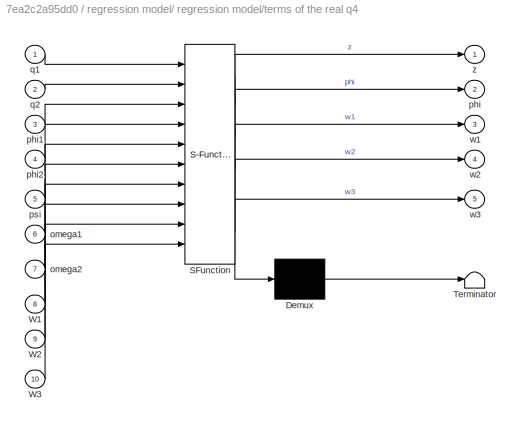
BLOCK [SubSystem] regression model/  regression model/terms of the real q4
  ErrorFcn = Stateflow.Translate.translate
  PermitHierarchicalResolution = ExplicitOnly
  Ports = [10, 5]
  RequestExecContextInheritance = off
  SFBlockType = MATLAB Function
  TreatAsAtomicUnit = on
BLOCK [Demux] regression model/  regression model/terms of the real q4/ Demux 
  Outputs = 1
  Ports = [1, 1]
BLOCK [S-Function] regression model/  regression model/terms of the real q4/ SFunction 
  EnableBusSupport = on
  FunctionName = sf_sfun
  Parameters = g,k,lambda_0,m,mu
  PortCounts = [10 6]
  Ports = [10, 6]
  SFcnIsStateOwnerBlock = off
  SFunctionDeploymentMode = off
  Tag = Stateflow S-Function 32
BLOCK [Terminator] regression model/  regression model/terms of the real q4/ Terminator 
BLOCK [Inport] regression model/  regression model/terms of the real q4/W1
  Port = 8
BLOCK [Inport] regression model/  regression model/terms of the real q4/W2
  Port = 9
BLOCK [Inport] regression model/  regression model/terms of the real q4/W3
  Port = 10
BLOCK [Inport] regression model/  regression model/terms of the real q4/omega1
  Port = 6
BLOCK [Inport] regression model/  regression model/terms of the real q4/omega2
  Port = 7
BLOCK [Outport] regression model/  regression model/terms of the real q4/phi
  Port = 2
  VectorParamsAs1DForOutWhenUnconnected = off
BLOCK [Inport] regression model/  regression model/terms of the real q4/phi1
  Port = 3
BLOCK [Inport] regression model/  regression model/terms of the real q4/phi2
  Port = 4
BLOCK [Inport] regression model/  regression model/terms of the real q4/psi
  Port = 5
BLOCK [Inport] regression model/  regression model/terms of the real q4/q1
BLOCK [Inport] regression model/  regression model/terms of the real q4/q2
  Port = 2
BLOCK [Outport] regression model/  regression model/terms of the real q4/w1
  Port = 3
  VectorParamsAs1DForOutWhenUnconnected = off
BLOCK [Outport] regression model/  regression model/terms of the real q4/w2
  Port = 4
  VectorParamsAs1DForOutWhenUnconnected = off
BLOCK [Outport] regression model/  regression model/terms of the real q4/w3
  Port = 5
  VectorParamsAs1DForOutWhenUnconnected = off
BLOCK [Outport] regression model/  regression model/terms of the real q4/z
  VectorParamsAs1DForOutWhenUnconnected = off
BLOCK [Inport] regression model/  regression model/v
BLOCK [Outport] regression model/  regression model/z
  VectorParamsAs1DForOutWhenUnconnected = off
BLOCK [SubSystem] regression model/Vectorize
  Ports = [5, 1]
  RequestExecContextInheritance = off
BLOCK [BusCreator] regression model/Vectorize/Bus Creator
  DisplayOption = bar
  InheritFromInputs = on
  Inputs = 12
  Ports = [12, 1]
BLOCK [Product] regression model/Vectorize/Product
  Ports = [2, 1]
BLOCK [TransferFcn] regression model/Vectorize/omega_1
  Denominator = [1 mu]
  Numerator = [mu 0]
BLOCK [TransferFcn] regression model/Vectorize/omega_2
  Denominator = [1 mu]
  Numerator = [mu]
BLOCK [TransferFcn] regression model/Vectorize/phi_1
  Denominator = [1 mu]
  Numerator = [mu]
BLOCK [TransferFcn] regression model/Vectorize/phi_2
  Denominator = [1 mu]
  Numerator = [mu]
BLOCK [SubSystem] regression model/Vectorize/psi
  Ports = [2, 1]
  RequestExecContextInheritance = off
BLOCK [Gain] regression model/Vectorize/psi/Gain
  Gain = R
BLOCK [Integrator] regression model/Vectorize/psi/Integrator
  Ports = [1, 1]
BLOCK [Sum] regression model/Vectorize/psi/Sum
  Inputs = |-+
  Ports = [2, 1]
BLOCK [Outport] regression model/Vectorize/psi/psi
  VectorParamsAs1DForOutWhenUnconnected = off
BLOCK [Inport] regression model/Vectorize/psi/u
  Port = 2
BLOCK [Inport] regression model/Vectorize/psi/y
BLOCK [SubSystem] regression model/Vectorize/q1
  Ports = [4, 1]
  RequestExecContextInheritance = off
BLOCK [Sum] regression model/Vectorize/q1/Sum
  Inputs = +-+
  Ports = [3, 1]
BLOCK [Inport] regression model/Vectorize/q1/omega1
  Port = 4
BLOCK [TransferFcn] regression model/Vectorize/q1/phi_2
  Denominator = [1 mu]
  Numerator = [mu]
BLOCK [TransferFcn] regression model/Vectorize/q1/phi_3
  Denominator = [1 mu]
BLOCK [Inport] regression model/Vectorize/q1/psi
  Port = 3
BLOCK [Outport] regression model/Vectorize/q1/q1
  VectorParamsAs1DForOutWhenUnconnected = off
BLOCK [SubSystem] regression model/Vectorize/q1/terms of the q1 est
  ErrorFcn = Stateflow.Translate.translate
  PermitHierarchicalResolution = ExplicitOnly
  Ports = [4, 3]
  RequestExecContextInheritance = off
  SFBlockType = MATLAB Function
  TreatAsAtomicUnit = on
BLOCK [Demux] regression model/Vectorize/q1/terms of the q1 est/ Demux 
  Outputs = 1
  Ports = [1, 1]
BLOCK [S-Function] regression model/Vectorize/q1/terms of the q1 est/ SFunction 
  EnableBusSupport = on
  FunctionName = sf_sfun
  Parameters = R
  PortCounts = [4 4]
  Ports = [4, 4]
  SFcnIsStateOwnerBlock = off
  SFunctionDeploymentMode = off
  Tag = Stateflow S-Function 4
BLOCK [Terminator] regression model/Vectorize/q1/terms of the q1 est/ Terminator 
BLOCK [Inport] regression model/Vectorize/q1/terms of the q1 est/omega1
  Port = 4
BLOCK [Inport] regression model/Vectorize/q1/terms of the q1 est/psi
  Port = 3
BLOCK [Outport] regression model/Vectorize/q1/terms of the q1 est/term1
  VectorParamsAs1DForOutWhenUnconnected = off
BLOCK [Outport] regression model/Vectorize/q1/terms of the q1 est/term2
  Port = 2
  VectorParamsAs1DForOutWhenUnconnected = off
BLOCK [Outport] regression model/Vectorize/q1/terms of the q1 est/term3
  Port = 3
  VectorParamsAs1DForOutWhenUnconnected = off
BLOCK [Inport] regression model/Vectorize/q1/terms of the q1 est/u
  Port = 2
BLOCK [Inport] regression model/Vectorize/q1/terms of the q1 est/y
BLOCK [Inport] regression model/Vectorize/q1/u
  Port = 2
BLOCK [Inport] regression model/Vectorize/q1/y
BLOCK [SubSystem] regression model/Vectorize/q2
  Ports = [1, 1]
  RequestExecContextInheritance = off
BLOCK [Gain] regression model/Vectorize/q2/Gain1
  Gain = k*m
BLOCK [TransferFcn] regression model/Vectorize/q2/phi_4
  Denominator = [1 mu]
  Numerator = [mu]
BLOCK [Inport] regression model/Vectorize/q2/q1
BLOCK [Outport] regression model/Vectorize/q2/q2
  VectorParamsAs1DForOutWhenUnconnected = off
BLOCK [Inport] regression model/Vectorize/u
  Port = 5
BLOCK [Outport] regression model/Vectorize/v
  VectorParamsAs1DForOutWhenUnconnected = off
BLOCK [Inport] regression model/Vectorize/x1
BLOCK [Inport] regression model/Vectorize/x2
  Port = 2
BLOCK [Inport] regression model/Vectorize/x3
  Port = 3
BLOCK [Inport] regression model/Vectorize/y
  Port = 4
BLOCK [Inport] regression model/Y
BLOCK [Inport] regression model/i
  Port = 4
BLOCK [Inport] regression model/lambda
  Port = 3
BLOCK [Inport] regression model/p
  Port = 2
BLOCK [Outport] regression model/phi
  Port = 2
  VectorParamsAs1DForOutWhenUnconnected = off
BLOCK [Inport] regression model/u
  Port = 5
BLOCK [Outport] regression model/z
  VectorParamsAs1DForOutWhenUnconnected = off
BLOCK [SubSystem] regression model1
  Ports = [5, 2]
  RequestExecContextInheritance = off
BLOCK [SubSystem] regression model1/  regression model
  Ports = [1, 2]
  RequestExecContextInheritance = off
BLOCK [BusSelector] regression model1/  regression model/Bus Selector1
  OutputSignals = q1,q2,phi1,phi2,psi,omega1,omega2
  Ports = [1, 7]
BLOCK [SubSystem] regression model1/  regression model/W
  Ports = [1, 1]
  RequestExecContextInheritance = off
BLOCK [Gain] regression model1/  regression model/W/Gain
  Gain = mu
BLOCK [Gain] regression model1/  regression model/W/Gain2
  Gain = mu
BLOCK [Inport] regression model1/  regression model/W/In
BLOCK [Integrator] regression model1/  regression model/W/Integrator
  Ports = [1, 1]
BLOCK [Outport] regression model1/  regression model/W/Out
  VectorParamsAs1DForOutWhenUnconnected = off
BLOCK [Sum] regression model1/  regression model/W/Sum
  Inputs = |+-
  Ports = [2, 1]
BLOCK [SubSystem] regression model1/  regression model/W^2
  Ports = [1, 1]
  RequestExecContextInheritance = off
BLOCK [Gain] regression model1/  regression model/W^2/Gain
  Gain = mu
BLOCK [Gain] regression model1/  regression model/W^2/Gain2
  Gain = mu
BLOCK [Gain] regression model1/  regression model/W^2/Gain4
  Gain = mu^2
BLOCK [Inport] regression model1/  regression model/W^2/In1
BLOCK [Integrator] regression model1/  regression model/W^2/Integrator
  Ports = [1, 1]
BLOCK [Integrator] regression model1/  regression model/W^2/Integrator1
  Ports = [1, 1]
BLOCK [Outport] regression model1/  regression model/W^2/Out1
  VectorParamsAs1DForOutWhenUnconnected = off
BLOCK [Sum] regression model1/  regression model/W^2/Sum
  Inputs = |+-
  Ports = [2, 1]
BLOCK [Sum] regression model1/  regression model/W^2/Sum1
  Inputs = |+-
  Ports = [2, 1]
BLOCK [SubSystem] regression model1/  regression model/W^3
  Ports = [1, 1]
  RequestExecContextInheritance = off
BLOCK [Gain] regression model1/  regression model/W^3/Gain
  Gain = mu
BLOCK [Gain] regression model1/  regression model/W^3/Gain1
  Gain = mu
BLOCK [Gain] regression model1/  regression model/W^3/Gain2
  Gain = mu
BLOCK [Gain] regression model1/  regression model/W^3/Gain4
  Gain = mu^3
BLOCK [Inport] regression model1/  regression model/W^3/In1
BLOCK [Integrator] regression model1/  regression model/W^3/Integrator
  Ports = [1, 1]
BLOCK [Integrator] regression model1/  regression model/W^3/Integrator1
  Ports = [1, 1]
BLOCK [Integrator] regression model1/  regression model/W^3/Integrator2
  Ports = [1, 1]
BLOCK [Outport] regression model1/  regression model/W^3/Out1
  VectorParamsAs1DForOutWhenUnconnected = off
BLOCK [Sum] regression model1/  regression model/W^3/Sum
  Inputs = |+-
  Ports = [2, 1]
BLOCK [Sum] regression model1/  regression model/W^3/Sum1
  Inputs = |+-
  Ports = [2, 1]
BLOCK [Sum] regression model1/  regression model/W^3/Sum2
  Inputs = |+-
  Ports = [2, 1]
BLOCK [Outport] regression model1/  regression model/phi
  Port = 2
  VectorParamsAs1DForOutWhenUnconnected = off
BLOCK [SubSystem] regression model1/  regression model/terms of the real q4
  ErrorFcn = Stateflow.Translate.translate
  PermitHierarchicalResolution = ExplicitOnly
  Ports = [10, 5]
  RequestExecContextInheritance = off
  SFBlockType = MATLAB Function
  TreatAsAtomicUnit = on
BLOCK [Demux] regression model1/  regression model/terms of the real q4/ Demux 
  Outputs = 1
  Ports = [1, 1]
BLOCK [S-Function] regression model1/  regression model/terms of the real q4/ SFunction 
  EnableBusSupport = on
  FunctionName = sf_sfun
  Parameters = g,k,lambda_0,m,mu
  PortCounts = [10 6]
  Ports = [10, 6]
  SFcnIsStateOwnerBlock = off
  SFunctionDeploymentMode = off
  Tag = Stateflow S-Function 10
BLOCK [Terminator] regression model1/  regression model/terms of the real q4/ Terminator 
BLOCK [Inport] regression model1/  regression model/terms of the real q4/W1
  Port = 8
BLOCK [Inport] regression model1/  regression model/terms of the real q4/W2
  Port = 9
BLOCK [Inport] regression model1/  regression model/terms of the real q4/W3
  Port = 10
BLOCK [Inport] regression model1/  regression model/terms of the real q4/omega1
  Port = 6
BLOCK [Inport] regression model1/  regression model/terms of the real q4/omega2
  Port = 7
BLOCK [Outport] regression model1/  regression model/terms of the real q4/phi
  Port = 2
  VectorParamsAs1DForOutWhenUnconnected = off
BLOCK [Inport] regression model1/  regression model/terms of the real q4/phi1
  Port = 3
BLOCK [Inport] regression model1/  regression model/terms of the real q4/phi2
  Port = 4
BLOCK [Inport] regression model1/  regression model/terms of the real q4/psi
  Port = 5
BLOCK [Inport] regression model1/  regression model/terms of the real q4/q1
BLOCK [Inport] regression model1/  regression model/terms of the real q4/q2
  Port = 2
BLOCK [Outport] regression model1/  regression model/terms of the real q4/w1
  Port = 3
  VectorParamsAs1DForOutWhenUnconnected = off
BLOCK [Outport] regression model1/  regression model/terms of the real q4/w2
  Port = 4
  VectorParamsAs1DForOutWhenUnconnected = off
BLOCK [Outport] regression model1/  regression model/terms of the real q4/w3
  Port = 5
  VectorParamsAs1DForOutWhenUnconnected = off
BLOCK [Outport] regression model1/  regression model/terms of the real q4/z
  VectorParamsAs1DForOutWhenUnconnected = off
BLOCK [Inport] regression model1/  regression model/v
BLOCK [Outport] regression model1/  regression model/z
  VectorParamsAs1DForOutWhenUnconnected = off
BLOCK [SubSystem] regression model1/Vectorize
  Ports = [5, 1]
  RequestExecContextInheritance = off
BLOCK [BusCreator] regression model1/Vectorize/Bus Creator
  DisplayOption = bar
  InheritFromInputs = on
  Inputs = 12
  Ports = [12, 1]
BLOCK [Product] regression model1/Vectorize/Product
  Ports = [2, 1]
BLOCK [TransferFcn] regression model1/Vectorize/omega_1
  Denominator = [1 mu]
  Numerator = [mu 0]
BLOCK [TransferFcn] regression model1/Vectorize/omega_2
  Denominator = [1 mu]
  Numerator = [mu]
BLOCK [TransferFcn] regression model1/Vectorize/phi_1
  Denominator = [1 mu]
  Numerator = [mu]
BLOCK [TransferFcn] regression model1/Vectorize/phi_2
  Denominator = [1 mu]
  Numerator = [mu]
BLOCK [SubSystem] regression model1/Vectorize/psi
  Ports = [2, 1]
  RequestExecContextInheritance = off
BLOCK [Gain] regression model1/Vectorize/psi/Gain
  Gain = R
BLOCK [Integrator] regression model1/Vectorize/psi/Integrator
  Ports = [1, 1]
BLOCK [Sum] regression model1/Vectorize/psi/Sum
  Inputs = |-+
  Ports = [2, 1]
BLOCK [Outport] regression model1/Vectorize/psi/psi
  VectorParamsAs1DForOutWhenUnconnected = off
BLOCK [Inport] regression model1/Vectorize/psi/u
  Port = 2
BLOCK [Inport] regression model1/Vectorize/psi/y
BLOCK [SubSystem] regression model1/Vectorize/q1
  Ports = [4, 1]
  RequestExecContextInheritance = off
BLOCK [Sum] regression model1/Vectorize/q1/Sum
  Inputs = +-+
  Ports = [3, 1]
BLOCK [Inport] regression model1/Vectorize/q1/omega1
  Port = 4
BLOCK [TransferFcn] regression model1/Vectorize/q1/phi_2
  Denominator = [1 mu]
  Numerator = [mu]
BLOCK [TransferFcn] regression model1/Vectorize/q1/phi_3
  Denominator = [1 mu]
BLOCK [Inport] regression model1/Vectorize/q1/psi
  Port = 3
BLOCK [Outport] regression model1/Vectorize/q1/q1
  VectorParamsAs1DForOutWhenUnconnected = off
BLOCK [SubSystem] regression model1/Vectorize/q1/terms of the q1 est
  ErrorFcn = Stateflow.Translate.translate
  PermitHierarchicalResolution = ExplicitOnly
  Ports = [4, 3]
  RequestExecContextInheritance = off
  SFBlockType = MATLAB Function
  TreatAsAtomicUnit = on
BLOCK [Demux] regression model1/Vectorize/q1/terms of the q1 est/ Demux 
  Outputs = 1
  Ports = [1, 1]
BLOCK [S-Function] regression model1/Vectorize/q1/terms of the q1 est/ SFunction 
  EnableBusSupport = on
  FunctionName = sf_sfun
  Parameters = R
  PortCounts = [4 4]
  Ports = [4, 4]
  SFcnIsStateOwnerBlock = off
  SFunctionDeploymentMode = off
  Tag = Stateflow S-Function 11
BLOCK [Terminator] regression model1/Vectorize/q1/terms of the q1 est/ Terminator 
BLOCK [Inport] regression model1/Vectorize/q1/terms of the q1 est/omega1
  Port = 4
BLOCK [Inport] regression model1/Vectorize/q1/terms of the q1 est/psi
  Port = 3
BLOCK [Outport] regression model1/Vectorize/q1/terms of the q1 est/term1
  VectorParamsAs1DForOutWhenUnconnected = off
BLOCK [Outport] regression model1/Vectorize/q1/terms of the q1 est/term2
  Port = 2
  VectorParamsAs1DForOutWhenUnconnected = off
BLOCK [Outport] regression model1/Vectorize/q1/terms of the q1 est/term3
  Port = 3
  VectorParamsAs1DForOutWhenUnconnected = off
BLOCK [Inport] regression model1/Vectorize/q1/terms of the q1 est/u
  Port = 2
BLOCK [Inport] regression model1/Vectorize/q1/terms of the q1 est/y
BLOCK [Inport] regression model1/Vectorize/q1/u
  Port = 2
BLOCK [Inport] regression model1/Vectorize/q1/y
BLOCK [SubSystem] regression model1/Vectorize/q2
  Ports = [1, 1]
  RequestExecContextInheritance = off
BLOCK [Gain] regression model1/Vectorize/q2/Gain1
  Gain = k*m
BLOCK [TransferFcn] regression model1/Vectorize/q2/phi_4
  Denominator = [1 mu]
  Numerator = [mu]
BLOCK [Inport] regression model1/Vectorize/q2/q1
BLOCK [Outport] regression model1/Vectorize/q2/q2
  VectorParamsAs1DForOutWhenUnconnected = off
BLOCK [Inport] regression model1/Vectorize/u
  Port = 5
BLOCK [Outport] regression model1/Vectorize/v
  VectorParamsAs1DForOutWhenUnconnected = off
BLOCK [Inport] regression model1/Vectorize/x1
BLOCK [Inport] regression model1/Vectorize/x2
  Port = 2
BLOCK [Inport] regression model1/Vectorize/x3
  Port = 3
BLOCK [Inport] regression model1/Vectorize/y
  Port = 4
BLOCK [Inport] regression model1/Y
BLOCK [Inport] regression model1/i
  Port = 4
BLOCK [Inport] regression model1/lambda
  Port = 3
BLOCK [Inport] regression model1/p
  Port = 2
BLOCK [Outport] regression model1/phi
  Port = 2
  VectorParamsAs1DForOutWhenUnconnected = off
BLOCK [Inport] regression model1/u
  Port = 5
BLOCK [Outport] regression model1/z
  VectorParamsAs1DForOutWhenUnconnected = off
ANNOTATION (root): ALCOS
ANNOTATION (root): Slice
ANNOTATION Estimation Slice: SLICE
ANNOTATION Estimation Slice/filtration and extention: Output filtration
ANNOTATION Estimation Slice/filtration and extention: Regressor filtration
ANNOTATION Full Observer ALCOS/Speed Observer: dlambda
ANNOTATION Full Observer Slice/Speed Observer: dlambda
LINE Add1:1 -> Current noise Switch1:2
LINE Add2:1 -> Scope3:1
LINE Add3:1 -> Scope3:2
LINE Add4:1 -> Voltage noise Switch1:2
LINE Add6:1 -> Current noise Switch:2
LINE Add7:1 -> Voltage noise Switch:2
NET Controller1:1 -> Add4:1, Desired [Y] ALCOS1:1, MagLev1:1, Voltage noise Switch1:1
NET Controller:1 -> Add7:1, MagLev:1, Voltage noise Switch:1
NET Current noise Switch1:1 -> Full Observer ALCOS:2, Scope:1, regression model1:4
NET Current noise Switch:1 -> Full Observer Slice:2, regression model:4
LINE Estimation ALCOS/Clock:1 -> Estimation ALCOS/Display14:1
NET Estimation ALCOS/DREM2:1 -> Estimation ALCOS/Gain1:1, Estimation ALCOS/Saturation1:1
NET Estimation ALCOS/DREM2:2 -> Estimation ALCOS/DET1:2, Estimation ALCOS/Sum1:2, Estimation ALCOS/Sum2:1
LINE Estimation ALCOS/Fcn10:1 -> Estimation ALCOS/xi1:1
LINE Estimation ALCOS/Fcn11:1 -> Estimation ALCOS/xi2:1
LINE Estimation ALCOS/Fcn7:1 -> Estimation ALCOS/xi7:1
LINE Estimation ALCOS/Fcn8:1 -> Estimation ALCOS/xi8:1
LINE Estimation ALCOS/Fcn9:1 -> Estimation ALCOS/xi9:1
NET Estimation ALCOS/Gain1:1 -> Estimation ALCOS/DET1:1, Estimation ALCOS/Sum1:1
LINE Estimation ALCOS/Gain7:1 -> Estimation ALCOS/Int:1
NET Estimation ALCOS/Int:1 -> Estimation ALCOS/Display10:1, Estimation ALCOS/Product21:2, Estimation ALCOS/est theta:1, Estimation ALCOS/omega ALCOS:1
LINE Estimation ALCOS/Mux:1 -> Estimation ALCOS/Product23:1
LINE Estimation ALCOS/Product20:1 -> Estimation ALCOS/Gain7:1
LINE Estimation ALCOS/Product21:1 -> Estimation ALCOS/Sum2:2
NET Estimation ALCOS/Product23:1 -> Estimation ALCOS/DREM2:1, Estimation ALCOS/xi3:1, Estimation ALCOS/xi4:1, Estimation ALCOS/xi5:1, Estimation ALCOS/xi6:1
NET Estimation ALCOS/Saturation1:1 -> Estimation ALCOS/DET:1, Estimation ALCOS/Display1:1, Estimation ALCOS/Product20:1, Estimation ALCOS/Product21:1
LINE Estimation ALCOS/Saturation2:1 -> Estimation ALCOS/drem error:1
LINE Estimation ALCOS/Step:1 -> Estimation ALCOS/Product23:2
NET Estimation ALCOS/Sum1:1 -> Estimation ALCOS/Display2:1, Estimation ALCOS/Saturation2:1
LINE Estimation ALCOS/Sum2:1 -> Estimation ALCOS/Product20:2
LINE Estimation ALCOS/lambda1:1 -> Estimation ALCOS/xi3:2
LINE Estimation ALCOS/lambda2:1 -> Estimation ALCOS/xi4:2
NET Estimation ALCOS/lambda3:1 -> Estimation ALCOS/xi10:2, Estimation ALCOS/xi1:2, Estimation ALCOS/xi2:2, Estimation ALCOS/xi7:2, Estimation ALCOS/xi8:2, Estimation ALCOS/xi9:2
LINE Estimation ALCOS/lambda5:1 -> Estimation ALCOS/xi5:2
LINE Estimation ALCOS/lambda6:1 -> Estimation ALCOS/xi6:2
NET Estimation ALCOS/phi:1 -> Estimation ALCOS/Fcn10:1, Estimation ALCOS/Fcn11:1, Estimation ALCOS/Fcn7:1, Estimation ALCOS/Fcn8:1, Estimation ALCOS/Fcn9:1
LINE Estimation ALCOS/xi1/Input:1 -> Estimation ALCOS/xi1/Sum1:1
NET Estimation ALCOS/xi1/Int:1 -> Estimation ALCOS/xi1/Output:1, Estimation ALCOS/xi1/Sum1:2
NET Estimation ALCOS/xi1/Product:1 -> Estimation ALCOS/xi1/Int:1, Estimation ALCOS/xi1/Output1:1
LINE Estimation ALCOS/xi1/Sum1:1 -> Estimation ALCOS/xi1/Product:1
LINE Estimation ALCOS/xi1/lambda:1 -> Estimation ALCOS/xi1/Product:2
LINE Estimation ALCOS/xi10/Input:1 -> Estimation ALCOS/xi10/Sum1:1
NET Estimation ALCOS/xi10/Int:1 -> Estimation ALCOS/xi10/Output:1, Estimation ALCOS/xi10/Sum1:2
NET Estimation ALCOS/xi10/Product:1 -> Estimation ALCOS/xi10/Int:1, Estimation ALCOS/xi10/Output1:1
LINE Estimation ALCOS/xi10/Sum1:1 -> Estimation ALCOS/xi10/Product:1
LINE Estimation ALCOS/xi10/lambda:1 -> Estimation ALCOS/xi10/Product:2
LINE Estimation ALCOS/xi10:2 -> Estimation ALCOS/Mux:6
LINE Estimation ALCOS/xi1:2 -> Estimation ALCOS/Mux:1
LINE Estimation ALCOS/xi2/Input:1 -> Estimation ALCOS/xi2/Sum1:1
NET Estimation ALCOS/xi2/Int:1 -> Estimation ALCOS/xi2/Output:1, Estimation ALCOS/xi2/Sum1:2
NET Estimation ALCOS/xi2/Product:1 -> Estimation ALCOS/xi2/Int:1, Estimation ALCOS/xi2/Output1:1
LINE Estimation ALCOS/xi2/Sum1:1 -> Estimation ALCOS/xi2/Product:1
LINE Estimation ALCOS/xi2/lambda:1 -> Estimation ALCOS/xi2/Product:2
LINE Estimation ALCOS/xi2:2 -> Estimation ALCOS/Mux:2
LINE Estimation ALCOS/xi3/Input:1 -> Estimation ALCOS/xi3/Sum1:1
NET Estimation ALCOS/xi3/Int:1 -> Estimation ALCOS/xi3/Output:1, Estimation ALCOS/xi3/Sum1:2
NET Estimation ALCOS/xi3/Product:1 -> Estimation ALCOS/xi3/Int:1, Estimation ALCOS/xi3/Output1:1
LINE Estimation ALCOS/xi3/Sum1:1 -> Estimation ALCOS/xi3/Product:1
LINE Estimation ALCOS/xi3/lambda:1 -> Estimation ALCOS/xi3/Product:2
LINE Estimation ALCOS/xi3:1 -> Estimation ALCOS/DREM2:5
LINE Estimation ALCOS/xi4/Input:1 -> Estimation ALCOS/xi4/Sum1:1
NET Estimation ALCOS/xi4/Int:1 -> Estimation ALCOS/xi4/Output:1, Estimation ALCOS/xi4/Sum1:2
NET Estimation ALCOS/xi4/Product:1 -> Estimation ALCOS/xi4/Int:1, Estimation ALCOS/xi4/Output1:1
LINE Estimation ALCOS/xi4/Sum1:1 -> Estimation ALCOS/xi4/Product:1
LINE Estimation ALCOS/xi4/lambda:1 -> Estimation ALCOS/xi4/Product:2
LINE Estimation ALCOS/xi4:1 -> Estimation ALCOS/DREM2:4
LINE Estimation ALCOS/xi5/Input:1 -> Estimation ALCOS/xi5/Sum1:1
NET Estimation ALCOS/xi5/Int:1 -> Estimation ALCOS/xi5/Output:1, Estimation ALCOS/xi5/Sum1:2
NET Estimation ALCOS/xi5/Product:1 -> Estimation ALCOS/xi5/Int:1, Estimation ALCOS/xi5/Output1:1
LINE Estimation ALCOS/xi5/Sum1:1 -> Estimation ALCOS/xi5/Product:1
LINE Estimation ALCOS/xi5/lambda:1 -> Estimation ALCOS/xi5/Product:2
LINE Estimation ALCOS/xi5:1 -> Estimation ALCOS/DREM2:3
LINE Estimation ALCOS/xi6/Input:1 -> Estimation ALCOS/xi6/Sum1:1
NET Estimation ALCOS/xi6/Int:1 -> Estimation ALCOS/xi6/Output:1, Estimation ALCOS/xi6/Sum1:2
NET Estimation ALCOS/xi6/Product:1 -> Estimation ALCOS/xi6/Int:1, Estimation ALCOS/xi6/Output1:1
LINE Estimation ALCOS/xi6/Sum1:1 -> Estimation ALCOS/xi6/Product:1
LINE Estimation ALCOS/xi6/lambda:1 -> Estimation ALCOS/xi6/Product:2
LINE Estimation ALCOS/xi6:1 -> Estimation ALCOS/DREM2:2
LINE Estimation ALCOS/xi7/Input:1 -> Estimation ALCOS/xi7/Sum1:1
NET Estimation ALCOS/xi7/Int:1 -> Estimation ALCOS/xi7/Output:1, Estimation ALCOS/xi7/Sum1:2
NET Estimation ALCOS/xi7/Product:1 -> Estimation ALCOS/xi7/Int:1, Estimation ALCOS/xi7/Output1:1
LINE Estimation ALCOS/xi7/Sum1:1 -> Estimation ALCOS/xi7/Product:1
LINE Estimation ALCOS/xi7/lambda:1 -> Estimation ALCOS/xi7/Product:2
LINE Estimation ALCOS/xi7:2 -> Estimation ALCOS/Mux:3
LINE Estimation ALCOS/xi8/Input:1 -> Estimation ALCOS/xi8/Sum1:1
NET Estimation ALCOS/xi8/Int:1 -> Estimation ALCOS/xi8/Output:1, Estimation ALCOS/xi8/Sum1:2
NET Estimation ALCOS/xi8/Product:1 -> Estimation ALCOS/xi8/Int:1, Estimation ALCOS/xi8/Output1:1
LINE Estimation ALCOS/xi8/Sum1:1 -> Estimation ALCOS/xi8/Product:1
LINE Estimation ALCOS/xi8/lambda:1 -> Estimation ALCOS/xi8/Product:2
LINE Estimation ALCOS/xi8:2 -> Estimation ALCOS/Mux:4
LINE Estimation ALCOS/xi9/Input:1 -> Estimation ALCOS/xi9/Sum1:1
NET Estimation ALCOS/xi9/Int:1 -> Estimation ALCOS/xi9/Output:1, Estimation ALCOS/xi9/Sum1:2
NET Estimation ALCOS/xi9/Product:1 -> Estimation ALCOS/xi9/Int:1, Estimation ALCOS/xi9/Output1:1
LINE Estimation ALCOS/xi9/Sum1:1 -> Estimation ALCOS/xi9/Product:1
LINE Estimation ALCOS/xi9/lambda:1 -> Estimation ALCOS/xi9/Product:2
LINE Estimation ALCOS/xi9:2 -> Estimation ALCOS/Mux:5
LINE Estimation ALCOS/z:1 -> Estimation ALCOS/xi10:1
LINE Estimation ALCOS:1 -> Full Observer ALCOS:1
LINE Estimation Slice/Clock:1 -> Estimation Slice/Slice algorithm:1
NET Estimation Slice/Integrator1:1 -> Estimation Slice/Scope7:1, Estimation Slice/Slice algorithm:5
LINE Estimation Slice/Math Function:1 -> Estimation Slice/filtration and extention:1
NET Estimation Slice/QR:1 -> Estimation Slice/Scope5:1, Estimation Slice/Slice algorithm:4
NET Estimation Slice/Slice algorithm:1 -> Estimation Slice/Scope4:2, Estimation Slice/Sum:2
LINE Estimation Slice/Slice algorithm:2 -> Estimation Slice/Scope8:1
LINE Estimation Slice/Slice algorithm:3 -> Estimation Slice/Scope11:1
LINE Estimation Slice/Slice algorithm:4 -> Estimation Slice/omega_slice:1
LINE Estimation Slice/Slice algorithm:5 -> Estimation Slice/Integrator1:1
LINE Estimation Slice/Sum:1 -> Estimation Slice/Scope9:1
LINE Estimation Slice/filtration and extention/Gain1:1 -> Estimation Slice/filtration and extention/Sum:1
LINE Estimation Slice/filtration and extention/Gain2:1 -> Estimation Slice/filtration and extention/Sum1:1
LINE Estimation Slice/filtration and extention/Gain3:1 -> Estimation Slice/filtration and extention/Sum1:2
LINE Estimation Slice/filtration and extention/Gain:1 -> Estimation Slice/filtration and extention/Sum:2
NET Estimation Slice/filtration and extention/Integrator1:1 -> Estimation Slice/filtration and extention/Gain3:1, Estimation Slice/filtration and extention/Z:1
NET Estimation Slice/filtration and extention/Integrator:1 -> Estimation Slice/filtration and extention/Gain:1, Estimation Slice/filtration and extention/Psi:1
LINE Estimation Slice/filtration and extention/Sum1:1 -> Estimation Slice/filtration and extention/Integrator1:1
LINE Estimation Slice/filtration and extention/Sum:1 -> Estimation Slice/filtration and extention/Integrator:1
LINE Estimation Slice/filtration and extention/phi:1 -> Estimation Slice/filtration and extention/Gain1:1
LINE Estimation Slice/filtration and extention/z:1 -> Estimation Slice/filtration and extention/Gain2:1
NET Estimation Slice/filtration and extention:1 -> Estimation Slice/QR:1, Estimation Slice/Scope:1, Estimation Slice/Slice algorithm:2
NET Estimation Slice/filtration and extention:2 -> Estimation Slice/Scope1:1, Estimation Slice/Scope4:1, Estimation Slice/Slice algorithm:3, Estimation Slice/Sum:1
LINE Estimation Slice/phi:1 -> Estimation Slice/Math Function:1
LINE Estimation Slice/z:1 -> Estimation Slice/filtration and extention:2
LINE Estimation Slice:1 -> Full Observer Slice:1
LINE From1:1 -> Add2:2
LINE From2:1 -> Add3:2
NET From3:1 -> Desired [Y]:1, Subsystem:1
LINE From4:1 -> Subsystem:3
LINE From5:1 -> Subsystem:2
LINE From6:1 -> Add2:1
NET From7:1 -> Desired [Y] ALCOS:1, Subsystem1:1
LINE From8:1 -> Subsystem1:3
LINE From9:1 -> Subsystem1:2
LINE From:1 -> Add3:1
LINE Full Observer ALCOS/Flux Observer/Gain1:1 -> Full Observer ALCOS/Flux Observer/Sum1:1
LINE Full Observer ALCOS/Flux Observer/I:1 -> Full Observer ALCOS/Flux Observer/Gain1:1
LINE Full Observer ALCOS/Flux Observer/Sum1:1 -> Full Observer ALCOS/Flux Observer/psi:1
LINE Full Observer ALCOS/Flux Observer/Sum5:1 -> Full Observer ALCOS/Flux Observer/lambda :1
LINE Full Observer ALCOS/Flux Observer/psi:1 -> Full Observer ALCOS/Flux Observer/Sum5:2
LINE Full Observer ALCOS/Flux Observer/theta:1 -> Full Observer ALCOS/Flux Observer/Sum5:1
LINE Full Observer ALCOS/Flux Observer/u:1 -> Full Observer ALCOS/Flux Observer/Sum1:2
NET Full Observer ALCOS/Flux Observer:1 -> Full Observer ALCOS/Position Observer:1, Full Observer ALCOS/Speed Observer:1, Full Observer ALCOS/est lambda:1, Full Observer ALCOS/lambda estimated:1
LINE Full Observer ALCOS/Gain1:1 -> Full Observer ALCOS/p estimated:1
LINE Full Observer ALCOS/Position Observer/Gain3:1 -> Full Observer ALCOS/Position Observer/Sum5:1
LINE Full Observer ALCOS/Position Observer/Gain7:1 -> Full Observer ALCOS/Position Observer/Sum5:2
LINE Full Observer ALCOS/Position Observer/Gain8:1 -> Full Observer ALCOS/Position Observer/Sum6:2
LINE Full Observer ALCOS/Position Observer/Gain9:1 -> Full Observer ALCOS/Position Observer/Product4:2
LINE Full Observer ALCOS/Position Observer/I:1 -> Full Observer ALCOS/Position Observer/Gain7:1
LINE Full Observer ALCOS/Position Observer/Math Function1:1 -> Full Observer ALCOS/Position Observer/Gain9:1
LINE Full Observer ALCOS/Position Observer/Product3:1 -> Full Observer ALCOS/Position Observer/Gain8:1
LINE Full Observer ALCOS/Position Observer/Product4:1 -> Full Observer ALCOS/Position Observer/Sum6:1
LINE Full Observer ALCOS/Position Observer/Sum5:1 -> Full Observer ALCOS/Position Observer/Product3:2
LINE Full Observer ALCOS/Position Observer/Sum6:1 -> Full Observer ALCOS/Position Observer/chi1:1
NET Full Observer ALCOS/Position Observer/chi1:1 -> Full Observer ALCOS/Position Observer/Product4:1, Full Observer ALCOS/Position Observer/Y:1
NET Full Observer ALCOS/Position Observer/lambda:1 -> Full Observer ALCOS/Position Observer/Gain3:1, Full Observer ALCOS/Position Observer/Math Function1:1, Full Observer ALCOS/Position Observer/Product3:1
LINE Full Observer ALCOS/Position Observer/v:1 -> Full Observer ALCOS/Position Observer/Sum6:3
NET Full Observer ALCOS/Position Observer:1 -> Full Observer ALCOS/Y estimated:1, Full Observer ALCOS/est Y:1
LINE Full Observer ALCOS/Speed Observer/Constant1:1 -> Full Observer ALCOS/Speed Observer/Sum2:2
LINE Full Observer ALCOS/Speed Observer/Gain1:1 -> Full Observer ALCOS/Speed Observer/Sum1:1
LINE Full Observer ALCOS/Speed Observer/Gain2:1 -> Full Observer ALCOS/Speed Observer/Sum2:1
LINE Full Observer ALCOS/Speed Observer/Gain4:1 -> Full Observer ALCOS/Speed Observer/Sum4:2
LINE Full Observer ALCOS/Speed Observer/Gain5:1 -> Full Observer ALCOS/Speed Observer/Sum3:1
LINE Full Observer ALCOS/Speed Observer/Gain6:1 -> Full Observer ALCOS/Speed Observer/Sum3:3
LINE Full Observer ALCOS/Speed Observer/Gain:1 -> Full Observer ALCOS/Speed Observer/Sum3:2
NET Full Observer ALCOS/Speed Observer/I:1 -> Full Observer ALCOS/Speed Observer/Gain1:1, Full Observer ALCOS/Speed Observer/Product1:2, Full Observer ALCOS/Speed Observer/Product:1
NET Full Observer ALCOS/Speed Observer/Math Function:1 -> Full Observer ALCOS/Speed Observer/Gain2:1, Full Observer ALCOS/Speed Observer/Product2:2
LINE Full Observer ALCOS/Speed Observer/Product1:1 -> Full Observer ALCOS/Speed Observer/Gain4:1
LINE Full Observer ALCOS/Speed Observer/Product2:1 -> Full Observer ALCOS/Speed Observer/Gain5:1
LINE Full Observer ALCOS/Speed Observer/Product:1 -> Full Observer ALCOS/Speed Observer/Gain6:1
LINE Full Observer ALCOS/Speed Observer/Sum1:1 -> Full Observer ALCOS/Speed Observer/Product:2
LINE Full Observer ALCOS/Speed Observer/Sum2:1 -> Full Observer ALCOS/Speed Observer/Gain:1
LINE Full Observer ALCOS/Speed Observer/Sum3:1 -> Full Observer ALCOS/Speed Observer/chi:1
NET Full Observer ALCOS/Speed Observer/Sum4:1 -> Full Observer ALCOS/Speed Observer/Product2:1, Full Observer ALCOS/Speed Observer/dY:1
LINE Full Observer ALCOS/Speed Observer/chi:1 -> Full Observer ALCOS/Speed Observer/Sum4:1
NET Full Observer ALCOS/Speed Observer/lambda:1 -> Full Observer ALCOS/Speed Observer/Math Function:1, Full Observer ALCOS/Speed Observer/Product1:1
LINE Full Observer ALCOS/Speed Observer/u:1 -> Full Observer ALCOS/Speed Observer/Sum1:2
NET Full Observer ALCOS/Speed Observer:1 -> Full Observer ALCOS/Gain1:1, Full Observer ALCOS/Position Observer:3, Full Observer ALCOS/est dY:1
LINE Full Observer ALCOS/theta:1 -> Full Observer ALCOS/Flux Observer:1
NET Full Observer ALCOS/u:1 -> Full Observer ALCOS/Flux Observer:3, Full Observer ALCOS/Speed Observer:3
NET Full Observer ALCOS/y:1 -> Full Observer ALCOS/Flux Observer:2, Full Observer ALCOS/Position Observer:2, Full Observer ALCOS/Speed Observer:2
LINE Full Observer ALCOS:1 -> Mux1:1
LINE Full Observer ALCOS:2 -> Mux1:2
NET Full Observer ALCOS:3 -> Goto7:1, Mux1:3
LINE Full Observer Slice/Flux Observer/Gain1:1 -> Full Observer Slice/Flux Observer/Sum1:1
LINE Full Observer Slice/Flux Observer/I:1 -> Full Observer Slice/Flux Observer/Gain1:1
LINE Full Observer Slice/Flux Observer/Sum1:1 -> Full Observer Slice/Flux Observer/psi:1
LINE Full Observer Slice/Flux Observer/Sum5:1 -> Full Observer Slice/Flux Observer/lambda :1
LINE Full Observer Slice/Flux Observer/psi:1 -> Full Observer Slice/Flux Observer/Sum5:2
LINE Full Observer Slice/Flux Observer/theta:1 -> Full Observer Slice/Flux Observer/Sum5:1
LINE Full Observer Slice/Flux Observer/u:1 -> Full Observer Slice/Flux Observer/Sum1:2
NET Full Observer Slice/Flux Observer:1 -> Full Observer Slice/Position Observer:1, Full Observer Slice/Speed Observer:1, Full Observer Slice/lambda estimated:1
LINE Full Observer Slice/Gain1:1 -> Full Observer Slice/p estimated:1
LINE Full Observer Slice/Position Observer/Gain3:1 -> Full Observer Slice/Position Observer/Sum5:1
LINE Full Observer Slice/Position Observer/Gain7:1 -> Full Observer Slice/Position Observer/Sum5:2
LINE Full Observer Slice/Position Observer/Gain8:1 -> Full Observer Slice/Position Observer/Sum6:2
LINE Full Observer Slice/Position Observer/Gain9:1 -> Full Observer Slice/Position Observer/Product4:2
LINE Full Observer Slice/Position Observer/I:1 -> Full Observer Slice/Position Observer/Gain7:1
LINE Full Observer Slice/Position Observer/Math Function1:1 -> Full Observer Slice/Position Observer/Gain9:1
LINE Full Observer Slice/Position Observer/Product3:1 -> Full Observer Slice/Position Observer/Gain8:1
LINE Full Observer Slice/Position Observer/Product4:1 -> Full Observer Slice/Position Observer/Sum6:1
LINE Full Observer Slice/Position Observer/Sum5:1 -> Full Observer Slice/Position Observer/Product3:2
LINE Full Observer Slice/Position Observer/Sum6:1 -> Full Observer Slice/Position Observer/chi1:1
NET Full Observer Slice/Position Observer/chi1:1 -> Full Observer Slice/Position Observer/Product4:1, Full Observer Slice/Position Observer/Y:1
NET Full Observer Slice/Position Observer/lambda:1 -> Full Observer Slice/Position Observer/Gain3:1, Full Observer Slice/Position Observer/Math Function1:1, Full Observer Slice/Position Observer/Product3:1
LINE Full Observer Slice/Position Observer/v:1 -> Full Observer Slice/Position Observer/Sum6:3
LINE Full Observer Slice/Position Observer:1 -> Full Observer Slice/Y estimated:1
LINE Full Observer Slice/Speed Observer/Constant1:1 -> Full Observer Slice/Speed Observer/Sum2:2
LINE Full Observer Slice/Speed Observer/Gain1:1 -> Full Observer Slice/Speed Observer/Sum1:1
LINE Full Observer Slice/Speed Observer/Gain2:1 -> Full Observer Slice/Speed Observer/Sum2:1
LINE Full Observer Slice/Speed Observer/Gain4:1 -> Full Observer Slice/Speed Observer/Sum4:2
LINE Full Observer Slice/Speed Observer/Gain5:1 -> Full Observer Slice/Speed Observer/Sum3:1
LINE Full Observer Slice/Speed Observer/Gain6:1 -> Full Observer Slice/Speed Observer/Sum3:3
LINE Full Observer Slice/Speed Observer/Gain:1 -> Full Observer Slice/Speed Observer/Sum3:2
NET Full Observer Slice/Speed Observer/I:1 -> Full Observer Slice/Speed Observer/Gain1:1, Full Observer Slice/Speed Observer/Product1:2, Full Observer Slice/Speed Observer/Product:1
NET Full Observer Slice/Speed Observer/Math Function:1 -> Full Observer Slice/Speed Observer/Gain2:1, Full Observer Slice/Speed Observer/Product2:2
LINE Full Observer Slice/Speed Observer/Product1:1 -> Full Observer Slice/Speed Observer/Gain4:1
LINE Full Observer Slice/Speed Observer/Product2:1 -> Full Observer Slice/Speed Observer/Gain5:1
LINE Full Observer Slice/Speed Observer/Product:1 -> Full Observer Slice/Speed Observer/Gain6:1
LINE Full Observer Slice/Speed Observer/Sum1:1 -> Full Observer Slice/Speed Observer/Product:2
LINE Full Observer Slice/Speed Observer/Sum2:1 -> Full Observer Slice/Speed Observer/Gain:1
LINE Full Observer Slice/Speed Observer/Sum3:1 -> Full Observer Slice/Speed Observer/chi:1
NET Full Observer Slice/Speed Observer/Sum4:1 -> Full Observer Slice/Speed Observer/Product2:1, Full Observer Slice/Speed Observer/dY:1
LINE Full Observer Slice/Speed Observer/chi:1 -> Full Observer Slice/Speed Observer/Sum4:1
NET Full Observer Slice/Speed Observer/lambda:1 -> Full Observer Slice/Speed Observer/Math Function:1, Full Observer Slice/Speed Observer/Product1:1
LINE Full Observer Slice/Speed Observer/u:1 -> Full Observer Slice/Speed Observer/Sum1:2
NET Full Observer Slice/Speed Observer:1 -> Full Observer Slice/Gain1:1, Full Observer Slice/Position Observer:3
LINE Full Observer Slice/theta:1 -> Full Observer Slice/Flux Observer:1
NET Full Observer Slice/u:1 -> Full Observer Slice/Flux Observer:3, Full Observer Slice/Speed Observer:3
NET Full Observer Slice/y:1 -> Full Observer Slice/Flux Observer:2, Full Observer Slice/Position Observer:2, Full Observer Slice/Speed Observer:2
LINE Full Observer Slice:1 -> Mux:1
LINE Full Observer Slice:2 -> Mux:2
NET Full Observer Slice:3 -> Goto2:1, Mux:3
LINE Generator/Constant:1 -> Generator/Multiport Switch:1
NET Generator/Filter 4order1/Constant:1 -> Generator/Filter 4order1/Product1:2, Generator/Filter 4order1/Product1:3, Generator/Filter 4order1/Product2:2, Generator/Filter 4order1/Product2:3, Generator/Filter 4order1/Product2:4, Generator/Filter 4order1/Product3:2, Generator/Filter 4order1/Product3:3, Generator/Filter 4order1/Product3:4, Generator/Filter 4order1/Product3:5, Generator/Filter 4order1/Product4:2, Generator/Filter 4order1/Product4:3, Generator/Filter 4order1/Product4:4, Generator/Filter 4order1/Product4:5, Generator/Filter 4order1/Product:2
LINE Generator/Filter 4order1/Gain1:1 -> Generator/Filter 4order1/Sum1:2
LINE Generator/Filter 4order1/Gain2:1 -> Generator/Filter 4order1/Sum2:2
LINE Generator/Filter 4order1/Gain:1 -> Generator/Filter 4order1/Sum:2
LINE Generator/Filter 4order1/Input:1 -> Generator/Filter 4order1/Product4:1
NET Generator/Filter 4order1/Integrator1:1 -> Generator/Filter 4order1/Integrator2:1, Generator/Filter 4order1/Product1:1, Generator/Filter 4order1/ddksi:1
NET Generator/Filter 4order1/Integrator2:1 -> Generator/Filter 4order1/Integrator3:1, Generator/Filter 4order1/Product2:1, Generator/Filter 4order1/dksi:1
NET Generator/Filter 4order1/Integrator3:1 -> Generator/Filter 4order1/Product3:1, Generator/Filter 4order1/ksi:1
NET Generator/Filter 4order1/Integrator:1 -> Generator/Filter 4order1/Integrator1:1, Generator/Filter 4order1/Product:1, Generator/Filter 4order1/dddksi:1
LINE Generator/Filter 4order1/Product1:1 -> Generator/Filter 4order1/Gain1:1
LINE Generator/Filter 4order1/Product2:1 -> Generator/Filter 4order1/Gain2:1
LINE Generator/Filter 4order1/Product3:1 -> Generator/Filter 4order1/Sum2:1
LINE Generator/Filter 4order1/Product4:1 -> Generator/Filter 4order1/Sum4:1
LINE Generator/Filter 4order1/Product:1 -> Generator/Filter 4order1/Gain:1
LINE Generator/Filter 4order1/Sum1:1 -> Generator/Filter 4order1/Sum:1
LINE Generator/Filter 4order1/Sum2:1 -> Generator/Filter 4order1/Sum1:1
NET Generator/Filter 4order1/Sum4:1 -> Generator/Filter 4order1/Integrator:1, Generator/Filter 4order1/ddddksi:1
LINE Generator/Filter 4order1/Sum:1 -> Generator/Filter 4order1/Sum4:2
NET Generator/Filter 4order1:1 -> Generator/Mux:1, Generator/Yd:1
LINE Generator/Filter 4order1:2 -> Generator/Mux:2
LINE Generator/Filter 4order1:3 -> Generator/Mux:3
LINE Generator/Filter 4order1:4 -> Generator/Mux:4
NET Generator/Multiport Switch:1 -> Generator/Filter 4order1:1, Generator/Yd1:1
LINE Generator/Mux:1 -> Generator/[Y*, dY*,ddY*,dddY*]:1
LINE Generator/Sine Wave1:1 -> Generator/Sum1:1
LINE Generator/Sine Wave2:1 -> Generator/Sum1:2
LINE Generator/Sine Wave:1 -> Generator/Sum1:3
LINE Generator/Step1:1 -> Generator/Sum54:4
LINE Generator/Step3:1 -> Generator/Sum54:1
LINE Generator/Step4:1 -> Generator/Sum54:2
LINE Generator/Step5:1 -> Generator/Sum54:3
NET Generator/Sum1:1 -> Generator/Multiport Switch:2, Generator/Multiport Switch:4
LINE Generator/Sum54:1 -> Generator/Multiport Switch:3
NET Generator:1 -> Controller1:1, Controller:1, Goto5:1
NET MagLev/ I :1 -> MagLev/Gain2:1, MagLev/i:1
LINE MagLev/Constant:1 -> MagLev/Sum1:2
LINE MagLev/F :1 -> MagLev/Sum1:1
LINE MagLev/Gain1:1 -> MagLev/p:1
LINE MagLev/Gain2:1 -> MagLev/Sum:1
LINE MagLev/Gain:1 -> MagLev/dY:1
LINE MagLev/Product:1 -> MagLev/ I :1
LINE MagLev/Sum1:1 -> MagLev/Gain:1
LINE MagLev/Sum2:1 -> MagLev/Product:2
LINE MagLev/Sum:1 -> MagLev/lambda_integrator:1
NET MagLev/Y :1 -> MagLev/Sum2:2, MagLev/Y:1
LINE MagLev/c:1 -> MagLev/Sum2:1
NET MagLev/dY:1 -> MagLev/Gain1:1, MagLev/Y :1, MagLev/dotY_maglev:1
LINE MagLev/lambda^2:1 -> MagLev/F :1
NET MagLev/lambda_integrator:1 -> MagLev/Product:1, MagLev/lambda:1, MagLev/lambda^2:1, MagLev/lambda^2:2
LINE MagLev/u:1 -> MagLev/Sum:2
NET MagLev1/ I :1 -> MagLev1/Gain2:1, MagLev1/i:1
LINE MagLev1/Constant:1 -> MagLev1/Sum1:2
LINE MagLev1/F :1 -> MagLev1/Sum1:1
LINE MagLev1/Gain1:1 -> MagLev1/p:1
LINE MagLev1/Gain2:1 -> MagLev1/Sum:1
LINE MagLev1/Gain:1 -> MagLev1/dY:1
LINE MagLev1/Product:1 -> MagLev1/ I :1
LINE MagLev1/Sum1:1 -> MagLev1/Gain:1
LINE MagLev1/Sum2:1 -> MagLev1/Product:2
LINE MagLev1/Sum:1 -> MagLev1/lambda_integrator:1
NET MagLev1/Y :1 -> MagLev1/Sum2:2, MagLev1/Y:1
LINE MagLev1/c:1 -> MagLev1/Sum2:1
NET MagLev1/dY:1 -> MagLev1/Gain1:1, MagLev1/Y :1, MagLev1/dotY_maglev:1
LINE MagLev1/lambda^2:1 -> MagLev1/F :1
NET MagLev1/lambda_integrator:1 -> MagLev1/Product:1, MagLev1/lambda:1, MagLev1/lambda^2:1, MagLev1/lambda^2:2
LINE MagLev1/u:1 -> MagLev1/Sum:2
NET MagLev1:1 -> Goto6:1, regression model1:1
LINE MagLev1:2 -> regression model1:2
NET MagLev1:3 -> Goto1:1, regression model1:3
NET MagLev1:4 -> Add1:1, Current noise Switch1:1
LINE MagLev1:5 -> Goto8:1
NET MagLev:1 -> Goto3:1, regression model:1
LINE MagLev:2 -> regression model:2
NET MagLev:3 -> Goto:1, regression model:3
NET MagLev:4 -> Add6:1, Current noise Switch:1
LINE MagLev:5 -> Goto4:1
LINE Mux1:1 -> Controller1:2
LINE Mux:1 -> Controller:2
LINE Noise for current2:1 -> Add1:2
LINE Noise for current:1 -> Add6:2
LINE Noise for voltage2:1 -> Add4:2
LINE Noise for voltage:1 -> Add7:2
LINE Subsystem/Add4:1 -> Subsystem/errY:1
LINE Subsystem/Add5:1 -> Subsystem/errDotY:1
NET Subsystem/Demux1:1 -> Subsystem/Add4:1, Subsystem/desiredY-Y:1
LINE Subsystem/Demux1:2 -> Subsystem/Add5:1
NET Subsystem/Y_desired:1 -> Subsystem/Demux1:1, Subsystem/Y_diff:3
NET Subsystem/Y_maglev:1 -> Subsystem/Add4:2, Subsystem/Y_diff:1, Subsystem/desiredY-Y:2
NET Subsystem/dotY_maglev:1 -> Subsystem/Add5:2, Subsystem/Y_diff:2
LINE Subsystem1/Add4:1 -> Subsystem1/errY_ALCOS:1
LINE Subsystem1/Add5:1 -> Subsystem1/errDotY_ALCOS:1
NET Subsystem1/Demux1:1 -> Subsystem1/Add4:1, Subsystem1/Desired [Y] ALCOS1:1
LINE Subsystem1/Demux1:2 -> Subsystem1/Add5:1
NET Subsystem1/Y_ALCOS:1 -> Subsystem1/Add4:2, Subsystem1/Desired [Y] ALCOS1:2
NET Subsystem1/Y_desired:1 -> Subsystem1/Demux1:1, Subsystem1/Desired [Y] ALCOS2:1
LINE Subsystem1/dotY_ALCOS:1 -> Subsystem1/Add5:2
LINE Subsystem1:1 -> desiredY-Y ALCOS:1
LINE Subsystem1:2 -> desiredDotY-DotY ALCOS:1
LINE Subsystem:1 -> desiredY-Y:1
LINE Subsystem:2 -> desiredDotY-DotY:1
NET Voltage noise Switch1:1 -> Full Observer ALCOS:3, Scope1:1, regression model1:5
NET Voltage noise Switch:1 -> Full Observer Slice:3, regression model:5
LINE regression model/  regression model/Bus Selector1:1 -> regression model/  regression model/terms of the real q4:1
LINE regression model/  regression model/Bus Selector1:2 -> regression model/  regression model/terms of the real q4:2
LINE regression model/  regression model/Bus Selector1:3 -> regression model/  regression model/terms of the real q4:3
LINE regression model/  regression model/Bus Selector1:4 -> regression model/  regression model/terms of the real q4:4
LINE regression model/  regression model/Bus Selector1:5 -> regression model/  regression model/terms of the real q4:5
LINE regression model/  regression model/Bus Selector1:6 -> regression model/  regression model/terms of the real q4:6
LINE regression model/  regression model/Bus Selector1:7 -> regression model/  regression model/terms of the real q4:7
LINE regression model/  regression model/W/Gain2:1 -> regression model/  regression model/W/Out:1
LINE regression model/  regression model/W/Gain:1 -> regression model/  regression model/W/Sum:2
LINE regression model/  regression model/W/In:1 -> regression model/  regression model/W/Sum:1
NET regression model/  regression model/W/Integrator:1 -> regression model/  regression model/W/Gain2:1, regression model/  regression model/W/Gain:1
LINE regression model/  regression model/W/Sum:1 -> regression model/  regression model/W/Integrator:1
LINE regression model/  regression model/W:1 -> regression model/  regression model/terms of the real q4:8
LINE regression model/  regression model/W^2/Gain2:1 -> regression model/  regression model/W^2/Sum1:2
LINE regression model/  regression model/W^2/Gain4:1 -> regression model/  regression model/W^2/Out1:1
LINE regression model/  regression model/W^2/Gain:1 -> regression model/  regression model/W^2/Sum:2
LINE regression model/  regression model/W^2/In1:1 -> regression model/  regression model/W^2/Sum:1
NET regression model/  regression model/W^2/Integrator1:1 -> regression model/  regression model/W^2/Gain2:1, regression model/  regression model/W^2/Gain4:1
NET regression model/  regression model/W^2/Integrator:1 -> regression model/  regression model/W^2/Gain:1, regression model/  regression model/W^2/Sum1:1
LINE regression model/  regression model/W^2/Sum1:1 -> regression model/  regression model/W^2/Integrator1:1
LINE regression model/  regression model/W^2/Sum:1 -> regression model/  regression model/W^2/Integrator:1
LINE regression model/  regression model/W^2:1 -> regression model/  regression model/terms of the real q4:9
LINE regression model/  regression model/W^3/Gain1:1 -> regression model/  regression model/W^3/Sum2:2
LINE regression model/  regression model/W^3/Gain2:1 -> regression model/  regression model/W^3/Sum1:2
LINE regression model/  regression model/W^3/Gain4:1 -> regression model/  regression model/W^3/Out1:1
LINE regression model/  regression model/W^3/Gain:1 -> regression model/  regression model/W^3/Sum:2
LINE regression model/  regression model/W^3/In1:1 -> regression model/  regression model/W^3/Sum2:1
NET regression model/  regression model/W^3/Integrator1:1 -> regression model/  regression model/W^3/Gain2:1, regression model/  regression model/W^3/Gain4:1
NET regression model/  regression model/W^3/Integrator2:1 -> regression model/  regression model/W^3/Gain1:1, regression model/  regression model/W^3/Sum:1
NET regression model/  regression model/W^3/Integrator:1 -> regression model/  regression model/W^3/Gain:1, regression model/  regression model/W^3/Sum1:1
LINE regression model/  regression model/W^3/Sum1:1 -> regression model/  regression model/W^3/Integrator1:1
LINE regression model/  regression model/W^3/Sum2:1 -> regression model/  regression model/W^3/Integrator2:1
LINE regression model/  regression model/W^3/Sum:1 -> regression model/  regression model/W^3/Integrator:1
LINE regression model/  regression model/W^3:1 -> regression model/  regression model/terms of the real q4:10
LINE regression model/  regression model/terms of the real q4:1 -> regression model/  regression model/z:1
LINE regression model/  regression model/terms of the real q4:2 -> regression model/  regression model/phi:1
LINE regression model/  regression model/terms of the real q4:3 -> regression model/  regression model/W:1
LINE regression model/  regression model/terms of the real q4:4 -> regression model/  regression model/W^2:1
LINE regression model/  regression model/terms of the real q4:5 -> regression model/  regression model/W^3:1
LINE regression model/  regression model/v:1 -> regression model/  regression model/Bus Selector1:1
LINE regression model/  regression model:1 -> regression model/z:1
LINE regression model/  regression model:2 -> regression model/phi:1
LINE regression model/Vectorize/Bus Creator:1 -> regression model/Vectorize/v:1
LINE regression model/Vectorize/Product:1 -> regression model/Vectorize/phi_1:1
NET regression model/Vectorize/omega_1:1 -> regression model/Vectorize/Bus Creator:11, regression model/Vectorize/omega_2:1, regression model/Vectorize/q1:4
LINE regression model/Vectorize/omega_2:1 -> regression model/Vectorize/Bus Creator:12
NET regression model/Vectorize/phi_1:1 -> regression model/Vectorize/Bus Creator:6, regression model/Vectorize/phi_2:1
LINE regression model/Vectorize/phi_2:1 -> regression model/Vectorize/Bus Creator:7
LINE regression model/Vectorize/psi/Gain:1 -> regression model/Vectorize/psi/Sum:1
LINE regression model/Vectorize/psi/Integrator:1 -> regression model/Vectorize/psi/psi:1
LINE regression model/Vectorize/psi/Sum:1 -> regression model/Vectorize/psi/Integrator:1
LINE regression model/Vectorize/psi/u:1 -> regression model/Vectorize/psi/Sum:2
LINE regression model/Vectorize/psi/y:1 -> regression model/Vectorize/psi/Gain:1
NET regression model/Vectorize/psi:1 -> regression model/Vectorize/Bus Creator:8, regression model/Vectorize/q1:3
LINE regression model/Vectorize/q1/Sum:1 -> regression model/Vectorize/q1/q1:1
LINE regression model/Vectorize/q1/omega1:1 -> regression model/Vectorize/q1/terms of the q1 est:4
LINE regression model/Vectorize/q1/phi_2:1 -> regression model/Vectorize/q1/Sum:1
LINE regression model/Vectorize/q1/phi_3:1 -> regression model/Vectorize/q1/Sum:3
LINE regression model/Vectorize/q1/psi:1 -> regression model/Vectorize/q1/terms of the q1 est:3
LINE regression model/Vectorize/q1/terms of the q1 est:1 -> regression model/Vectorize/q1/phi_2:1
LINE regression model/Vectorize/q1/terms of the q1 est:2 -> regression model/Vectorize/q1/Sum:2
LINE regression model/Vectorize/q1/terms of the q1 est:3 -> regression model/Vectorize/q1/phi_3:1
LINE regression model/Vectorize/q1/u:1 -> regression model/Vectorize/q1/terms of the q1 est:2
LINE regression model/Vectorize/q1/y:1 -> regression model/Vectorize/q1/terms of the q1 est:1
NET regression model/Vectorize/q1:1 -> regression model/Vectorize/Bus Creator:1, regression model/Vectorize/q2:1
LINE regression model/Vectorize/q2/Gain1:1 -> regression model/Vectorize/q2/phi_4:1
LINE regression model/Vectorize/q2/phi_4:1 -> regression model/Vectorize/q2/q2:1
LINE regression model/Vectorize/q2/q1:1 -> regression model/Vectorize/q2/Gain1:1
LINE regression model/Vectorize/q2:1 -> regression model/Vectorize/Bus Creator:2
NET regression model/Vectorize/u:1 -> regression model/Vectorize/Bus Creator:10, regression model/Vectorize/psi:2, regression model/Vectorize/q1:2
LINE regression model/Vectorize/x1:1 -> regression model/Vectorize/Bus Creator:3
LINE regression model/Vectorize/x2:1 -> regression model/Vectorize/Bus Creator:4
NET regression model/Vectorize/x3:1 -> regression model/Vectorize/Bus Creator:5, regression model/Vectorize/Product:1, regression model/Vectorize/Product:2
NET regression model/Vectorize/y:1 -> regression model/Vectorize/Bus Creator:9, regression model/Vectorize/omega_1:1, regression model/Vectorize/psi:1, regression model/Vectorize/q1:1
LINE regression model/Vectorize:1 -> regression model/  regression model:1
LINE regression model/Y:1 -> regression model/Vectorize:1
LINE regression model/i:1 -> regression model/Vectorize:4
LINE regression model/lambda:1 -> regression model/Vectorize:3
LINE regression model/p:1 -> regression model/Vectorize:2
LINE regression model/u:1 -> regression model/Vectorize:5
LINE regression model1/  regression model/Bus Selector1:1 -> regression model1/  regression model/terms of the real q4:1
LINE regression model1/  regression model/Bus Selector1:2 -> regression model1/  regression model/terms of the real q4:2
LINE regression model1/  regression model/Bus Selector1:3 -> regression model1/  regression model/terms of the real q4:3
LINE regression model1/  regression model/Bus Selector1:4 -> regression model1/  regression model/terms of the real q4:4
LINE regression model1/  regression model/Bus Selector1:5 -> regression model1/  regression model/terms of the real q4:5
LINE regression model1/  regression model/Bus Selector1:6 -> regression model1/  regression model/terms of the real q4:6
LINE regression model1/  regression model/Bus Selector1:7 -> regression model1/  regression model/terms of the real q4:7
LINE regression model1/  regression model/W/Gain2:1 -> regression model1/  regression model/W/Out:1
LINE regression model1/  regression model/W/Gain:1 -> regression model1/  regression model/W/Sum:2
LINE regression model1/  regression model/W/In:1 -> regression model1/  regression model/W/Sum:1
NET regression model1/  regression model/W/Integrator:1 -> regression model1/  regression model/W/Gain2:1, regression model1/  regression model/W/Gain:1
LINE regression model1/  regression model/W/Sum:1 -> regression model1/  regression model/W/Integrator:1
LINE regression model1/  regression model/W:1 -> regression model1/  regression model/terms of the real q4:8
LINE regression model1/  regression model/W^2/Gain2:1 -> regression model1/  regression model/W^2/Sum1:2
LINE regression model1/  regression model/W^2/Gain4:1 -> regression model1/  regression model/W^2/Out1:1
LINE regression model1/  regression model/W^2/Gain:1 -> regression model1/  regression model/W^2/Sum:2
LINE regression model1/  regression model/W^2/In1:1 -> regression model1/  regression model/W^2/Sum:1
NET regression model1/  regression model/W^2/Integrator1:1 -> regression model1/  regression model/W^2/Gain2:1, regression model1/  regression model/W^2/Gain4:1
NET regression model1/  regression model/W^2/Integrator:1 -> regression model1/  regression model/W^2/Gain:1, regression model1/  regression model/W^2/Sum1:1
LINE regression model1/  regression model/W^2/Sum1:1 -> regression model1/  regression model/W^2/Integrator1:1
LINE regression model1/  regression model/W^2/Sum:1 -> regression model1/  regression model/W^2/Integrator:1
LINE regression model1/  regression model/W^2:1 -> regression model1/  regression model/terms of the real q4:9
LINE regression model1/  regression model/W^3/Gain1:1 -> regression model1/  regression model/W^3/Sum2:2
LINE regression model1/  regression model/W^3/Gain2:1 -> regression model1/  regression model/W^3/Sum1:2
LINE regression model1/  regression model/W^3/Gain4:1 -> regression model1/  regression model/W^3/Out1:1
LINE regression model1/  regression model/W^3/Gain:1 -> regression model1/  regression model/W^3/Sum:2
LINE regression model1/  regression model/W^3/In1:1 -> regression model1/  regression model/W^3/Sum2:1
NET regression model1/  regression model/W^3/Integrator1:1 -> regression model1/  regression model/W^3/Gain2:1, regression model1/  regression model/W^3/Gain4:1
NET regression model1/  regression model/W^3/Integrator2:1 -> regression model1/  regression model/W^3/Gain1:1, regression model1/  regression model/W^3/Sum:1
NET regression model1/  regression model/W^3/Integrator:1 -> regression model1/  regression model/W^3/Gain:1, regression model1/  regression model/W^3/Sum1:1
LINE regression model1/  regression model/W^3/Sum1:1 -> regression model1/  regression model/W^3/Integrator1:1
LINE regression model1/  regression model/W^3/Sum2:1 -> regression model1/  regression model/W^3/Integrator2:1
LINE regression model1/  regression model/W^3/Sum:1 -> regression model1/  regression model/W^3/Integrator:1
LINE regression model1/  regression model/W^3:1 -> regression model1/  regression model/terms of the real q4:10
LINE regression model1/  regression model/terms of the real q4:1 -> regression model1/  regression model/z:1
LINE regression model1/  regression model/terms of the real q4:2 -> regression model1/  regression model/phi:1
LINE regression model1/  regression model/terms of the real q4:3 -> regression model1/  regression model/W:1
LINE regression model1/  regression model/terms of the real q4:4 -> regression model1/  regression model/W^2:1
LINE regression model1/  regression model/terms of the real q4:5 -> regression model1/  regression model/W^3:1
LINE regression model1/  regression model/v:1 -> regression model1/  regression model/Bus Selector1:1
LINE regression model1/  regression model:1 -> regression model1/z:1
LINE regression model1/  regression model:2 -> regression model1/phi:1
LINE regression model1/Vectorize/Bus Creator:1 -> regression model1/Vectorize/v:1
LINE regression model1/Vectorize/Product:1 -> regression model1/Vectorize/phi_1:1
NET regression model1/Vectorize/omega_1:1 -> regression model1/Vectorize/Bus Creator:11, regression model1/Vectorize/omega_2:1, regression model1/Vectorize/q1:4
LINE regression model1/Vectorize/omega_2:1 -> regression model1/Vectorize/Bus Creator:12
NET regression model1/Vectorize/phi_1:1 -> regression model1/Vectorize/Bus Creator:6, regression model1/Vectorize/phi_2:1
LINE regression model1/Vectorize/phi_2:1 -> regression model1/Vectorize/Bus Creator:7
LINE regression model1/Vectorize/psi/Gain:1 -> regression model1/Vectorize/psi/Sum:1
LINE regression model1/Vectorize/psi/Integrator:1 -> regression model1/Vectorize/psi/psi:1
LINE regression model1/Vectorize/psi/Sum:1 -> regression model1/Vectorize/psi/Integrator:1
LINE regression model1/Vectorize/psi/u:1 -> regression model1/Vectorize/psi/Sum:2
LINE regression model1/Vectorize/psi/y:1 -> regression model1/Vectorize/psi/Gain:1
NET regression model1/Vectorize/psi:1 -> regression model1/Vectorize/Bus Creator:8, regression model1/Vectorize/q1:3
LINE regression model1/Vectorize/q1/Sum:1 -> regression model1/Vectorize/q1/q1:1
LINE regression model1/Vectorize/q1/omega1:1 -> regression model1/Vectorize/q1/terms of the q1 est:4
LINE regression model1/Vectorize/q1/phi_2:1 -> regression model1/Vectorize/q1/Sum:1
LINE regression model1/Vectorize/q1/phi_3:1 -> regression model1/Vectorize/q1/Sum:3
LINE regression model1/Vectorize/q1/psi:1 -> regression model1/Vectorize/q1/terms of the q1 est:3
LINE regression model1/Vectorize/q1/terms of the q1 est:1 -> regression model1/Vectorize/q1/phi_2:1
LINE regression model1/Vectorize/q1/terms of the q1 est:2 -> regression model1/Vectorize/q1/Sum:2
LINE regression model1/Vectorize/q1/terms of the q1 est:3 -> regression model1/Vectorize/q1/phi_3:1
LINE regression model1/Vectorize/q1/u:1 -> regression model1/Vectorize/q1/terms of the q1 est:2
LINE regression model1/Vectorize/q1/y:1 -> regression model1/Vectorize/q1/terms of the q1 est:1
NET regression model1/Vectorize/q1:1 -> regression model1/Vectorize/Bus Creator:1, regression model1/Vectorize/q2:1
LINE regression model1/Vectorize/q2/Gain1:1 -> regression model1/Vectorize/q2/phi_4:1
LINE regression model1/Vectorize/q2/phi_4:1 -> regression model1/Vectorize/q2/q2:1
LINE regression model1/Vectorize/q2/q1:1 -> regression model1/Vectorize/q2/Gain1:1
LINE regression model1/Vectorize/q2:1 -> regression model1/Vectorize/Bus Creator:2
NET regression model1/Vectorize/u:1 -> regression model1/Vectorize/Bus Creator:10, regression model1/Vectorize/psi:2, regression model1/Vectorize/q1:2
LINE regression model1/Vectorize/x1:1 -> regression model1/Vectorize/Bus Creator:3
LINE regression model1/Vectorize/x2:1 -> regression model1/Vectorize/Bus Creator:4
NET regression model1/Vectorize/x3:1 -> regression model1/Vectorize/Bus Creator:5, regression model1/Vectorize/Product:1, regression model1/Vectorize/Product:2
NET regression model1/Vectorize/y:1 -> regression model1/Vectorize/Bus Creator:9, regression model1/Vectorize/omega_1:1, regression model1/Vectorize/psi:1, regression model1/Vectorize/q1:1
LINE regression model1/Vectorize:1 -> regression model1/  regression model:1
LINE regression model1/Y:1 -> regression model1/Vectorize:1
LINE regression model1/i:1 -> regression model1/Vectorize:4
LINE regression model1/lambda:1 -> regression model1/Vectorize:3
LINE regression model1/p:1 -> regression model1/Vectorize:2
LINE regression model1/u:1 -> regression model1/Vectorize:5
LINE regression model1:1 -> Estimation ALCOS:1
LINE regression model1:2 -> Estimation ALCOS:2
LINE regression model:1 -> Estimation Slice:1
LINE regression model:2 -> Estimation Slice:2
note: NET lines group one-source signal fan-out (src -> all destinations, sorted); 1:1 wires keep LINE
CHART Estimation Slice/Slice algorithm states=1 transitions=1
  STATE_LABEL 'eML_blk_kernel()'
  STATE_LABEL 'SCRIPT:\nfunction [zt, n, kth, Omega_p, dOmega] = fcn(t, Psi, Z, R, Omega_e, Omega, gamma_SLICE, epsilon)\n\n    M = length(Psi);\n    ld_columns = zeros(1, M-1); % linear dependent columns index vector\n    ln_columns = zeros(1, M); ln_columns(1) = 1;\n    K = eye(M, M);\n    psil = Psi;\n\n    %% Select linear dependent columns\n\n    ldn = 0;\n    lnn = 1;\n\n    for j = 2:M % changed 1\n        if (R(j) < ep...<+1741ch>'
CHART Estimation Slice/QR states=1 transitions=1
  STATE_LABEL 'eML_blk_kernel()'
  STATE_LABEL 'SCRIPT:\nfunction R = QR(X)\n\n    Q = zeros(size(X));\n\n    Q(:, 1) = X(:, 1);\n    Q(:, 2) = X(:, 2) - dot(X(:, 2), Q(:, 1)) * Q(:, 1)/dot(Q(:, 1), Q(:, 1));\n\n    for i = 3:size(X, 2)\n        Q(:, i) = X(:, i) - dot(X(:, i), Q(:, 1)) * Q(:, 1)/dot(Q(:, 1), Q(:, 1));\n        for j = 2:i-1\n            proj = dot(Q(:, i), Q(:, j)) * Q(:, j)/dot(Q(:, j), Q(:, j));\n            Q(:, i) = Q(:, i) - proj;\n  ...<+112ch>'
CHART regression model1/  regression model/terms of the real q4 states=1 transitions=1
  STATE_LABEL 'eML_blk_kernel()'
  STATE_LABEL 'SCRIPT:\nfunction [z, phi, w1, w2, w3] = fcn( q1, q2, phi1, phi2, psi, omega1, omega2, W1, W2, W3, k, g, m, lambda_0, mu)\n\ntheta = lambda_0;\n\npsi1 = psi;\npsi2 = psi1^2;\n\nw1psi1 = W1(1);\nw1psi2 = W1(2);\nw1psi1w1psi1 = W1(3);\nw1psi1w1psi2 = W1(4);\nw1psi1w2psi1 = W1(5);\nw1psi1w2psi2 = W1(6);\nw1a1w1psi1 = W1(7);\nw1a1w1psi2 = W1(8);\nw1a1w2psi1 = W1(9);\nw1a1w2psi2 = W1(10);\n\nw2psi1 = W2(1);\nw2psi2 = W2(2...<+3528ch>'
CHART regression model1/Vectorize/q1/terms of the q1 est states=1 transitions=1
  STATE_LABEL 'eML_blk_kernel()'
  STATE_LABEL 'SCRIPT:\nfunction [term1, term2, term3] = fcn( y, u, psi, omega1, R )\n\nterm1 = y*(u - R*y);\nterm2 = psi*omega1;\nterm3 = (u - R*y)*omega1;'
CHART regression model/  regression model/terms of the real q4 states=1 transitions=1
  STATE_LABEL 'eML_blk_kernel()'
  STATE_LABEL 'SCRIPT:\nfunction [z, phi, w1, w2, w3] = fcn( q1, q2, phi1, phi2, psi, omega1, omega2, W1, W2, W3, k, g, m, lambda_0, mu)\n\ntheta = lambda_0;\n\npsi1 = psi;\npsi2 = psi1^2;\n\nw1psi1 = W1(1);\nw1psi2 = W1(2);\nw1psi1w1psi1 = W1(3);\nw1psi1w1psi2 = W1(4);\nw1psi1w2psi1 = W1(5);\nw1psi1w2psi2 = W1(6);\nw1a1w1psi1 = W1(7);\nw1a1w1psi2 = W1(8);\nw1a1w2psi1 = W1(9);\nw1a1w2psi2 = W1(10);\n\nw2psi1 = W2(1);\nw2psi2 = W2(2...<+3528ch>'
CHART Controller states=1 transitions=1
  STATE_LABEL 'eML_blk_kernel()'
  STATE_LABEL 'SCRIPT:\nfunction u = fcn(Yd, X, c, k, R, g, m, k0, k1, k2)\n\nY = X(1);\ndY = X(2)/m;\nlambda = X(3);\n\nF = 0.5*lambda^2/k;\n\nv = Yd(4) - k2*( (F/m - g) - Yd(3) ) - k1*( dY - Yd(2) ) - k0*( Y - Yd(1));\n\nu = sqrt(0.5*k/F)*m*v + R*(c - Y)*sqrt(2*F/k);\n'
CHART Controller1 states=1 transitions=1
  STATE_LABEL 'eML_blk_kernel()'
  STATE_LABEL 'SCRIPT:\nfunction u = fcn(Yd, X, c, k, R, g, m, k0, k1, k2)\n\nY = X(1);\ndY = X(2)/m;\nlambda = X(3);\n\nF = 0.5*lambda^2/k;\n\nv = Yd(4) - k2*( (F/m - g) - Yd(3) ) - k1*( dY - Yd(2) ) - k0*( Y - Yd(1));\n\nu = sqrt(0.5*k/F)*m*v + R*(c - Y)*sqrt(2*F/k);\n'
CHART regression model/Vectorize/q1/terms of the q1 est states=1 transitions=1
  STATE_LABEL 'eML_blk_kernel()'
  STATE_LABEL 'SCRIPT:\nfunction [term1, term2, term3] = fcn( y, u, psi, omega1, R )\n\nterm1 = y*(u - R*y);\nterm2 = psi*omega1;\nterm3 = (u - R*y)*omega1;'
CHART Estimation ALCOS/DREM2 states=1 transitions=1
  STATE_LABEL 'eML_blk_kernel()'
  STATE_LABEL 'SCRIPT:\nfunction [newreg,y1,y2,y3,y4,y5] = fcn(in1,in2,in3,in4,in5)\n\n\na11=in1(1); a12=in1(2); a13=in1(3); a14=in1(4); a15=in1(5);\n\na21=in2(1); a22=in2(2); a23=in2(3); a24=in2(4); a25=in2(5);\n\na31=in3(1); a32=in3(2); a33=in3(3); a34=in3(4); a35=in3(5);\n\na41=in4(1); a42=in4(2); a43=in4(3); a44=in4(4); a45=in4(5);\n\na51=in5(1); a52=in5(2); a53=in5(3); a54=in5(4); a55=in5(5);\n\nRegM=[a11  a12  a13  a14 ...<+3608ch>'
CHART  states=0 transitions=0
CHART  states=0 transitions=0
CHART  states=0 transitions=0
CHART  states=0 transitions=0
CHART  states=0 transitions=0
CHART  states=0 transitions=0
CHART  states=0 transitions=0
CHART  states=0 transitions=0
CHART  states=0 transitions=0
